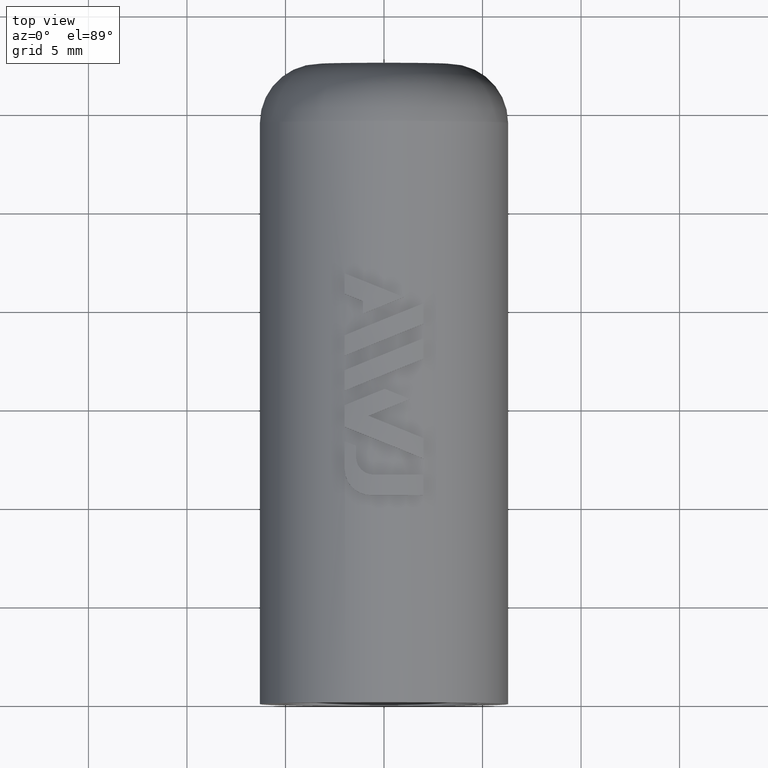
[diagram: clean part render]
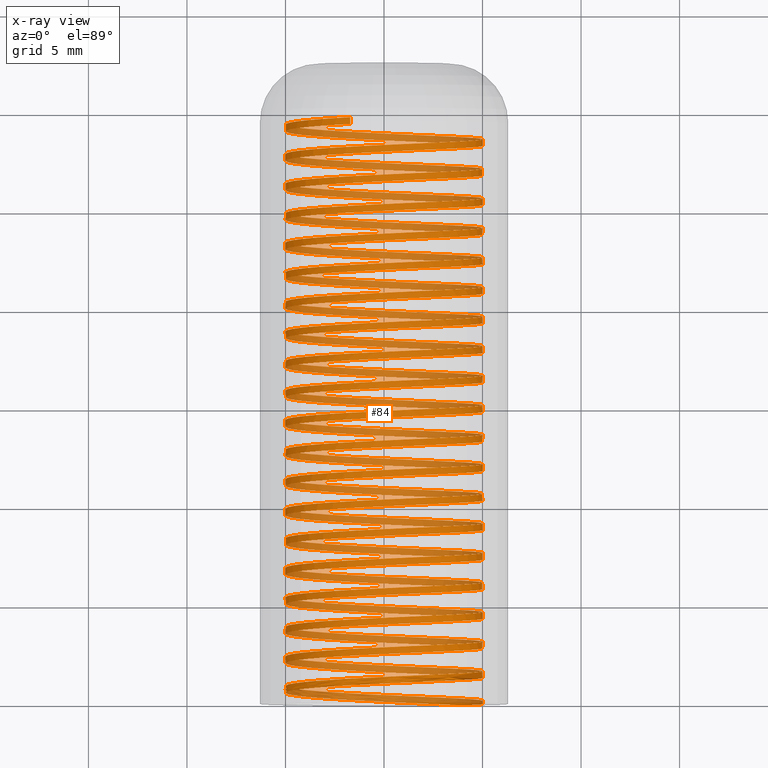
[diagram: x-ray — body ghosted, one internal face saturated and labeled with its STEP entity id]
A machine part, top view, then the same camera in x-ray: the body is ghosted and one INTERNAL B-rep face — a face not visible from any outside direction — is saturated and labeled: STEP entity #84.
In plain terms, the highlighted face is a freeform B-spline surface patch.
Its self-contained STEP definition (entity closure, byte-faithful):
#84=ADVANCED_FACE('',(#169),#170,.F.);
#169=FACE_OUTER_BOUND('',#341,.T.);
#170=B_SPLINE_SURFACE_WITH_KNOTS('',1,3,((#342,#343,#344,#345,#346,#347,#348,#349,#350,#351,#352,#353,#354,#355,#356,#357,#358,#359,#360,#361,#362,#363,#364,#365,#366,#367,#368,#369,#370,#371,#372,#373,#374,#375,#376,#377,#378,#379,#380,#381,#382,#383,#384,#385,#386,#387,#388,#389,#390,#391,#392,#393,#394,#395,#396,#397,#398,#399,#400,#401,#402,#403,#404,#405,#406,#407,#408,#409,#410,#411,#412,#413,#414,#415,#416,#417,#418,#419,#420,#421,#422,#423,#424,#425,#426,#427,#428,#429,#430,#431,#432,#433,#434,#435,#436,#437,#438,#439,#440,#441,#442,#443,#444,#445,#446,#447,#448,#449,#450,#451,#452,#453,#454,#455,#456,#457,#458,#459,#460,#461,#462,#463,#464,#465,#466,#467,#468,#469,#470,#471,#472,#473,#474,#475,#476,#477,#478,#479,#480,#481,#482,#483,#484,#485,#486,#487,#488,#489,#490,#491,#492,#493,#494,#495,#496,#497,#498,#499,#500,#501,#502,#503,#504,#505,#506,#507,#508,#509,#510,#511,#512,#513,#514,#515,#516,#517,#518,#519,#520,#521,#522,#523,#524,#525,#526,#527,#528,#529,#530,#531,#532,#533,#534,#535,#536,#537,#538,#539,#540,#541,#542,#543,#544,#545,#546,#547,#548,#549,#550,#551,#552,#553,#554,#555,#556,#557,#558,#559,#560,#561,#562,#563,#564,#565,#566,#567,#568,#569,#570,#571,#572,#573,#574,#575,#576,#577,#578,#579,#580,#581,#582,#583,#584,#585,#586,#587,#588,#589,#590,#591,#592,#593,#594,#595,#596,#597,#598,#599,#600,#601,#602,#603,#604,#605,#606,#607,#608,#609,#610,#611,#612,#613,#614,#615,#616,#617,#618,#619,#620,#621,#622,#623,#624,#625,#626,#627,#628,#629,#630,#631,#632,#633,#634,#635,#636,#637,#638,#639,#640,#641,#642,#643,#644,#645,#646,#647,#648,#649,#650,#651,#652,#653,#654,#655,#656,#657,#658),(#659,#660,#661,#662,#663,#664,#665,#666,#667,#668,#669,#670,#671,#672,#673,#674,#675,#676,#677,#678,#679,#680,#681,#682,#683,#684,#685,#686,#687,#688,#689,#690,#691,#692,#693,#694,#695,#696,#697,#698,#699,#700,#701,#702,#703,#704,#705,#706,#707,#708,#709,#710,#711,#712,#713,#714,#715,#716,#717,#718,#719,#720,#721,#722,#723,#724,#725,#726,#727,#728,#729,#730,#731,#732,#733,#734,#735,#736,#737,#738,#739,#740,#741,#742,#743,#744,#745,#746,#747,#748,#749,#750,#751,#752,#753,#754,#755,#756,#757,#758,#759,#760,#761,#762,#763,#764,#765,#766,#767,#768,#769,#770,#771,#772,#773,#774,#775,#776,#777,#778,#779,#780,#781,#782,#783,#784,#785,#786,#787,#788,#789,#790,#791,#792,#793,#794,#795,#796,#797,#798,#799,#800,#801,#802,#803,#804,#805,#806,#807,#808,#809,#810,#811,#812,#813,#814,#815,#816,#817,#818,#819,#820,#821,#822,#823,#824,#825,#826,#827,#828,#829,#830,#831,#832,#833,#834,#835,#836,#837,#838,#839,#840,#841,#842,#843,#844,#845,#846,#847,#848,#849,#850,#851,#852,#853,#854,#855,#856,#857,#858,#859,#860,#861,#862,#863,#864,#865,#866,#867,#868,#869,#870,#871,#872,#873,#874,#875,#876,#877,#878,#879,#880,#881,#882,#883,#884,#885,#886,#887,#888,#889,#890,#891,#892,#893,#894,#895,#896,#897,#898,#899,#900,#901,#902,#903,#904,#905,#906,#907,#908,#909,#910,#911,#912,#913,#914,#915,#916,#917,#918,#919,#920,#921,#922,#923,#924,#925,#926,#927,#928,#929,#930,#931,#932,#933,#934,#935,#936,#937,#938,#939,#940,#941,#942,#943,#944,#945,#946,#947,#948,#949,#950,#951,#952,#953,#954,#955,#956,#957,#958,#959,#960,#961,#962,#963,#964,#965,#966,#967,#968,#969,#970,#971,#972,#973,#974,#975)),.UNSPECIFIED.,.F.,.F.,.F.,(2,2),(4,1,1,1,1,1,1,1,1,1,1,1,1,1,1,1,1,1,1,1,1,1,1,1,1,1,1,1,1,1,1,1,1,1,1,1,1,1,1,1,1,1,1,1,1,1,1,1,1,1,1,1,1,1,1,1,1,1,1,1,1,1,1,1,1,1,1,1,1,1,1,1,1,1,1,1,1,1,1,1,1,1,1,1,1,1,1,1,1,1,1,1,1,1,1,1,1,1,1,1,1,1,1,1,1,1,1,1,1,1,1,1,1,1,1,1,1,1,1,1,1,1,1,1,1,1,1,1,1,1,1,1,1,1,1,1,1,1,1,1,1,1,1,1,1,1,1,1,1,1,1,1,1,1,1,1,1,1,1,1,1,1,1,1,1,1,1,1,1,1,1,1,1,1,1,1,1,1,1,1,1,1,1,1,1,1,1,1,1,1,1,1,1,1,1,1,1,1,1,1,1,1,1,1,1,1,1,1,1,1,1,1,1,1,1,1,1,1,1,1,1,1,1,1,1,1,1,1,1,1,1,1,1,1,1,1,1,1,1,1,1,1,1,1,1,1,1,1,1,1,1,1,1,1,1,1,1,1,1,1,1,1,1,1,1,1,1,1,1,1,1,1,1,1,1,1,1,1,1,1,1,1,1,1,1,1,1,1,1,1,1,1,1,1,1,1,1,1,1,1,1,1,1,1,1,1,1,1,1,1,1,1,1,1,4),(0.0,0.333333333333334),(0.0,1.0,2.0,3.0,4.0,5.0,6.0,7.0,8.0,9.0,10.0,11.0,12.0,13.0,14.0,15.0,16.0,17.0,18.0,19.0,20.0,21.0,22.0,23.0,24.0,25.0,26.0,27.0,28.0,29.0,30.0,31.0,32.0,33.0,34.0,35.0,36.0,37.0,38.0,39.0,40.0,41.0,42.0,43.0,44.0,45.0,46.0,47.0,48.0,49.0,50.0,51.0,52.0,53.0,54.0,55.0,56.0,57.0,58.0,59.0,60.0,61.0,62.0,63.0,64.0,65.0,66.0,67.0,68.0,69.0,70.0,71.0,72.0,73.0,74.0,75.0,76.0,77.0,78.0,79.0,80.0,81.0,82.0,83.0,84.0,85.0,86.0,87.0,88.0,89.0,90.0,91.0,92.0,93.0,94.0,95.0,96.0,97.0,98.0,99.0,100.0,101.0,102.0,103.0,104.0,105.0,106.0,107.0,108.0,109.0,110.0,111.0,112.0,113.0,114.0,115.0,116.0,117.0,118.0,119.0,120.0,121.0,122.0,123.0,124.0,125.0,126.0,127.0,128.0,129.0,130.0,131.0,132.0,133.0,134.0,135.0,136.0,137.0,138.0,139.0,140.0,141.0,142.0,143.0,144.0,145.0,146.0,147.0,148.0,149.0,150.0,151.0,152.0,153.0,154.0,155.0,156.0,157.0,158.0,159.0,160.0,161.0,162.0,163.0,164.0,165.0,166.0,167.0,168.0,169.0,170.0,171.0,172.0,173.0,174.0,175.0,176.0,177.0,178.0,179.0,180.0,181.0,182.0,183.0,184.0,185.0,186.0,187.0,188.0,189.0,190.0,191.0,192.0,193.0,194.0,195.0,196.0,197.0,198.0,199.0,200.0,201.0,202.0,203.0,204.0,205.0,206.0,207.0,208.0,209.0,210.0,211.0,212.0,213.0,214.0,215.0,216.0,217.0,218.0,219.0,220.0,221.0,222.0,223.0,224.0,225.0,226.0,227.0,228.0,229.0,230.0,231.0,232.0,233.0,234.0,235.0,236.0,237.0,238.0,239.0,240.0,241.0,242.0,243.0,244.0,245.0,246.0,247.0,248.0,249.0,250.0,251.0,252.0,253.0,254.0,255.0,256.0,257.0,258.0,259.0,260.0,261.0,262.0,263.0,264.0,265.0,266.0,267.0,268.0,269.0,270.0,271.0,272.0,273.0,274.0,275.0,276.0,277.0,278.0,279.0,280.0,281.0,282.0,283.0,284.0,285.0,286.0,287.0,288.0,289.0,290.0,291.0,292.0,293.0,294.0,295.0,296.0,297.0,298.0,299.0,300.0,301.0,302.0,303.0,304.0,305.0,306.0,307.0,308.0,309.0,310.0,311.0,312.0,313.0,314.0),.UNSPECIFIED.);
#341=EDGE_LOOP('',(#2417,#2418,#2419,#2420,#2421));
#342=CARTESIAN_POINT('',(5.0,-0.173205080756864,-1.82260150325267E-15));
#343=CARTESIAN_POINT('',(5.0,-0.142046581419453,-0.652583393045449));
#344=CARTESIAN_POINT('',(4.73778781981941,-0.0790295536328041,-1.97210082464296));
#345=CARTESIAN_POINT('',(3.61814288935587,0.0149332712702133,-3.63779221202605));
#346=CARTESIAN_POINT('',(1.94380699883004,0.109046875730565,-4.74880697576069));
#347=CARTESIAN_POINT('',(-0.0285206821310998,0.203120078900216,-5.13098860026959));
#348=CARTESIAN_POINT('',(-1.99647971893704,0.297204107579412,-4.72677516308801));
#349=CARTESIAN_POINT('',(-3.65836407377911,0.391285235566423,-3.59785935386459));
#350=CARTESIAN_POINT('',(-4.75939901715307,0.485367140793635,-1.91738455873977));
#351=CARTESIAN_POINT('',(-5.13078801693896,0.579448837759328,0.0570413555299523));
#352=CARTESIAN_POINT('',(-4.71559512833593,0.673530590528712,2.02272141371951));
#353=CARTESIAN_POINT('',(-3.57747193472565,0.767612328345493,3.67830587877885));
#354=CARTESIAN_POINT('',(-1.89089987610573,0.861694070168823,4.76998292685132));
#355=CARTESIAN_POINT('',(0.0855589850852769,0.9557758109186,5.13039171642049));
#356=CARTESIAN_POINT('',(2.04890111753762,1.04985755195603,4.7042792968921));
#357=CARTESIAN_POINT('',(3.6981338675503,1.14393929291639,3.55697137927292));
#358=CARTESIAN_POINT('',(4.78041951825449,1.2380210338974,1.86435745614031));
#359=CARTESIAN_POINT('',(5.12983689636061,1.33210277487288,-0.114074149456028));
#360=CARTESIAN_POINT('',(4.69281812789219,1.42618451584984,-2.07501747302747));
#361=CARTESIAN_POINT('',(3.53636092899473,1.5202662568264,-3.71784761316477));
#362=CARTESIAN_POINT('',(1.83775743615398,1.61434799780307,-4.79070841324114));
#363=CARTESIAN_POINT('',(-0.142585789474959,1.7084297387797,-5.12912358863358));
#364=CARTESIAN_POINT('',(-2.10106971994569,1.80251147975636,-4.6812119719967));
#365=CARTESIAN_POINT('',(-3.73744649425893,1.896593220733,-3.51564122136908));
#366=CARTESIAN_POINT('',(-4.800849297205,1.99067496170965,-1.81110063783438));
#367=CARTESIAN_POINT('',(-5.12825181439977,2.08475670268629,0.171093024239266));
#368=CARTESIAN_POINT('',(-4.66946118801881,2.17883844366294,2.12705705340119));
#369=CARTESIAN_POINT('',(-3.49481289647697,2.27292018463958,3.75692990531578));
#370=CARTESIAN_POINT('',(-1.78438788477192,2.36700192561622,4.81084185683931));
#371=CARTESIAN_POINT('',(0.199594973010067,2.46108366659287,5.12722160059295));
#372=CARTESIAN_POINT('',(2.15297867050275,2.55516540756951,4.65756613900415));
#373=CARTESIAN_POINT('',(3.7762972443872,2.64924714854616,3.47387659781857));
#374=CARTESIAN_POINT('',(4.82068578341949,2.74332888952281,1.75762000226871));
#375=CARTESIAN_POINT('',(5.12603297904206,2.83741063049945,-0.228090755207261));
#376=CARTESIAN_POINT('',(4.64552719245542,2.9314923714761,-2.17883377039074));
#377=CARTESIAN_POINT('',(3.45283297222992,3.02557411245274,-3.7955479131108));
#378=CARTESIAN_POINT('',(1.73079781733016,3.11965585342938,-4.83038077281315));
#379=CARTESIAN_POINT('',(-0.256579490441247,3.21373759440604,-5.12468598647007));
#380=CARTESIAN_POINT('',(-2.20462155426058,3.30781933538268,-4.63334472032111));
#381=CARTESIAN_POINT('',(-3.8146813167288,3.40190107635932,-3.431682669863));
#382=CARTESIAN_POINT('',(-4.83992652548938,3.49598281733597,-1.70392215863934));
#383=CARTESIAN_POINT('',(-5.12318066449291,3.59006455831261,0.285060298540144));
#384=CARTESIAN_POINT('',(-4.62101909898401,3.68414629928926,2.23034122538748));
#385=CARTESIAN_POINT('',(-3.41042634416562,3.77822804026591,3.83369686410637));
#386=CARTESIAN_POINT('',(-1.67699385653144,3.87230978124255,4.84932274652798));
#387=CARTESIAN_POINT('',(0.313532299577,3.9663915222192,5.12151705961816));
#388=CARTESIAN_POINT('',(2.25599198915097,4.06047326319584,4.60855070924955));
#389=CARTESIAN_POINT('',(3.85259396774987,4.15455500417249,3.38906465186122));
#390=CARTESIAN_POINT('',(4.85856914562862,4.24863674514913,1.65001374296803));
#391=CARTESIAN_POINT('',(5.1196952232436,4.34271848612578,-0.341994613896897));
#392=CARTESIAN_POINT('',(4.59593993633405,4.43680022710242,-2.28157305305959));
#393=CARTESIAN_POINT('',(3.36759825292858,4.53088196807907,-3.87137204382505));
#394=CARTESIAN_POINT('',(1.62298265151154,4.62496370905571,-4.86766543711977));
#395=CARTESIAN_POINT('',(-0.370446362144286,4.71904545003236,-5.11771521165568));
#396=CARTESIAN_POINT('',(-2.30708362677515,4.813127191009,-4.58318716985286));
#397=CARTESIAN_POINT('',(-3.89003051217512,4.90720893198565,-3.34602781058145));
#398=CARTESIAN_POINT('',(-4.87661133996754,5.0012906729623,-1.59590141729927));
#399=CARTESIAN_POINT('',(-5.1155770860277,5.09537241393894,0.39888666529));
#400=CARTESIAN_POINT('',(-4.57029280380824,5.18945415491558,2.33252292213741));
#401=CARTESIAN_POINT('',(-3.32435399124803,5.28353589589223,3.90856879633852));
#402=CARTESIAN_POINT('',(-1.56877087701777,5.37761763686888,4.88540657778437));
#403=CARTESIAN_POINT('',(0.427314644658489,5.47169937784552,5.113280912418));
#404=CARTESIAN_POINT('',(2.35789015318827,5.56578111882217,4.55725723657724));
#405=CARTESIAN_POINT('',(3.92698632356692,5.65986285979881,3.30257746455041));
#406=CARTESIAN_POINT('',(4.89405087883755,5.75394460077546,1.54159186887686));
#407=CARTESIAN_POINT('',(5.11082676176785,5.8480263417521,-0.45572942195495));
#408=CARTESIAN_POINT('',(4.5440808708994,5.94210808272875,-2.38318453619606));
#409=CARTESIAN_POINT('',(3.28069890328386,6.03618982370539,-3.94528252484279));
#410=CARTESIAN_POINT('',(1.51436523258387,6.13027156468204,-4.90254397605764));
#411=CARTESIAN_POINT('',(-0.484130119292466,6.22435330565868,-5.10821470989931));
#412=CARTESIAN_POINT('',(-2.40840528967981,6.31843504663533,-4.53076411386426));
#413=CARTESIAN_POINT('',(-3.96345683489702,6.41251678761197,-3.25871898339607));
#414=CARTESIAN_POINT('',(-4.91088560704671,6.50659852858862,-1.48709180931756));
#415=CARTESIAN_POINT('',(-5.10544483751286,6.60068026956526,0.512515859219156));
#416=CARTESIAN_POINT('',(-4.51730737689884,6.69476201054191,2.43355163443335));
#417=CARTESIAN_POINT('',(-3.2366383839662,6.78884375151855,3.98150869222642));
#418=CARTESIAN_POINT('',(-1.45977244170223,6.8829254924952,4.91907551408642));
#419=CARTESIAN_POINT('',(0.540885764745163,6.97700723347185,5.10251723018491));
#420=CARTESIAN_POINT('',(2.45862279354942,7.07108897444849,4.50371107575487));
#421=CARTESIAN_POINT('',(3.99943753911093,7.16517071542513,3.21445778718404));
#422=CARTESIAN_POINT('',(4.92711344414604,7.25925245640178,1.43240797378163));
#423=CARTESIAN_POINT('',(5.09943197836516,7.35333419737843,-0.56923895936993));
#424=CARTESIAN_POINT('',(4.48997563049601,7.44741593835507,-2.48361799244365));
#425=CARTESIAN_POINT('',(3.19217787832878,7.54149767933172,-4.01724282163106));
#426=CARTESIAN_POINT('',(1.40499925099287,7.63557942030836,-4.93499914889023));
#427=CARTESIAN_POINT('',(-0.597574567109126,7.72966116128501,-5.09618917737383));
#428=CARTESIAN_POINT('',(-2.50853645887848,7.82374290226165,-4.47610146548481));
#429=CARTESIAN_POINT('',(-4.03492398968485,7.9178246432383,-3.16979934574786));
#430=CARTESIAN_POINT('',(-4.94273238468668,8.01190638421494,-1.37754712014047));
#431=CARTESIAN_POINT('',(-5.09278892739865,8.10598812519159,0.625891712521884));
#432=CARTESIAN_POINT('',(-4.46208900936966,8.20006986616823,2.53337742298703));
#433=CARTESIAN_POINT('',(-3.14732288083583,8.29415160714488,4.0524804970049));
#434=CARTESIAN_POINT('',(-1.35005242936993,8.38823334812152,4.95031291261373));
#435=CARTESIAN_POINT('',(0.654189520737678,8.48231508909817,5.08923133349182));
#436=CARTESIAN_POINT('',(2.55814011729693,8.57639683007481,4.44793869507145));
#437=CARTESIAN_POINT('',(4.06991180117528,8.67047857105146,3.12474917801285));
#438=CARTESIAN_POINT('',(4.95774049846765,8.76456031202811,1.32251602814167));
#439=CARTESIAN_POINT('',(5.08551650556675,8.85864205300475,-0.682467117483306));
#440=CARTESIAN_POINT('',(4.43365095977035,8.9527237939814,-2.58282377675389));
#441=CARTESIAN_POINT('',(3.10207893470329,9.04680553495804,-4.08721736364827));
#442=CARTESIAN_POINT('',(1.29493876720481,9.14088727593469,-4.96501491276995));
#443=CARTESIAN_POINT('',(-0.71072362911015,9.23496901691133,-5.08164455839469));
#444=CARTESIAN_POINT('',(-2.60742763874552,9.32905075788798,-4.41922624489218));
#445=CARTESIAN_POINT('',(-4.10439664976101,9.42313249886463,-3.07931285131414));
#446=CARTESIAN_POINT('',(-4.97213593077442,9.51721423984127,-1.26732149857085));
#447=CARTESIAN_POINT('',(-5.07761561160112,9.61129598081792,0.738958182620979));
#448=CARTESIAN_POINT('',(-4.40466499609474,9.70537772179456,2.63195094312482));
#449=CARTESIAN_POINT('',(-3.05645163121358,9.7994594627712,4.12144912875188));
#450=CARTESIAN_POINT('',(-1.2396650754873,9.89354120374785,4.97910333247412));
#451=CARTESIAN_POINT('',(0.767169905696961,9.9876229447245,5.07342978966209));
#452=CARTESIAN_POINT('',(2.65639293223362,10.0817046857011,4.38996766325415));
#453=CARTESIAN_POINT('',(4.13837427377719,10.1757864266778,3.03349598070889));
#454=CARTESIAN_POINT('',(4.98591690260814,10.2698681676544,1.21197035241142));
#455=CARTESIAN_POINT('',(5.06908722190043,10.3639499086311,-0.795357926724633));
#456=CARTESIAN_POINT('',(4.37513470045094,10.4580316496077,-2.680752850926));
#457=CARTESIAN_POINT('',(3.01044660902489,10.5521133905844,-4.15517156192718));
#458=CARTESIAN_POINT('',(1.18423818498372,10.646195131561,-4.99257643066827));
#459=CARTESIAN_POINT('',(-0.823521374822807,10.7402768725376,-5.06458804248162));
#460=CARTESIAN_POINT('',(-2.70502994659169,10.8343586135143,-4.36016656595594));
#461=CARTESIAN_POINT('',(-4.17184047424234,10.9284403544909,-2.98730422828196));
#462=CARTESIAN_POINT('',(-4.99908171090547,11.0225220954676,-1.15646943000161));
#463=CARTESIAN_POINT('',(-5.0599323904098,11.1166038364442,0.851659379869491));
#464=CARTESIAN_POINT('',(-4.34506372221619,11.2106855774209,2.72922346917923));
#465=CARTESIAN_POINT('',(-2.96406955347403,11.3047673183975,4.18838049572936));
#466=CARTESIAN_POINT('',(-1.12866494539286,11.3988490593742,5.00543254233629));
#467=CARTESIAN_POINT('',(0.879771072528765,11.4929308003508,5.05512040952334));
#468=CARTESIAN_POINT('',(2.7533326712192,11.5870125413275,4.32982663584061));
#469=CARTESIAN_POINT('',(4.20479111537706,11.6810942823041,2.94074330244649));
#470=CARTESIAN_POINT('',(5.01162872874903,11.7751760232807,1.10082559018912));
#471=CARTESIAN_POINT('',(5.05015224849051,11.8692577642574,-0.907855584277646));
#472=CARTESIAN_POINT('',(4.31445577758563,11.963339505234,-2.77735680784732));
#473=CARTESIAN_POINT('',(2.91732619587405,12.0574212462107,-4.22107182617222));
#474=CARTESIAN_POINT('',(1.07295222449941,12.1515029871873,-5.0176700787098));
#475=CARTESIAN_POINT('',(-0.935912047432911,12.245584728164,-5.0450280608048));
#476=CARTESIAN_POINT('',(-2.80129513682741,12.3396664691406,-4.29895162234061));
#477=CARTESIAN_POINT('',(-4.23722212511518,12.4337482101173,-2.89381895723837));
#478=CARTESIAN_POINT('',(-5.02355640556847,12.5278299510939,-1.04504570948348));
#479=CARTESIAN_POINT('',(-5.03974800478021,12.6219116920706,0.963939595177912));
#480=CARTESIAN_POINT('',(-4.28331464911316,12.7159934330472,2.82514691857439));
#481=CARTESIAN_POINT('',(-2.87022231280588,12.8100751740239,4.25324151323542));
#482=CARTESIAN_POINT('',(-1.01710690732522,12.9041569150005,5.02928752746442));
#483=CARTESIAN_POINT('',(0.991937361589342,12.9982386559771,5.03431224354638));
#484=CARTESIAN_POINT('',(2.84891141617707,13.0923203969538,4.26754534101441));
#485=CARTESIAN_POINT('',(4.26912949560697,13.1864021379304,2.84653699160515));
#486=CARTESIAN_POINT('',(5.03486326733211,13.2804838789071,0.989136681206206));
#487=CARTESIAN_POINT('',(5.02872094504352,13.3745656198837,-1.01990448166405));
#488=CARTESIAN_POINT('',(4.25164418524398,13.4686473608604,-2.87258789542095));
#489=CARTESIAN_POINT('',(2.82276372540447,13.562729101837,-4.2848855813637));
#490=CARTESIAN_POINT('',(0.961135895278689,13.6568108428137,-5.04028345290666));
#491=CARTESIAN_POINT('',(-1.04784009134566,13.7508925837903,-5.02297428201723));
#492=CARTESIAN_POINT('',(-2.89617562481088,13.844974324767,-4.235611673075));
#493=CARTESIAN_POINT('',(-4.30050928371447,13.9390560657436,-2.7989032486893));
#494=CARTESIAN_POINT('',(-5.04554791672906,14.0331378067202,-0.933105414639147));
#495=CARTESIAN_POINT('',(-5.01707243201317,14.1272195476969,1.07574332755135));
#496=CARTESIAN_POINT('',(-4.21944829983892,14.2213012886735,2.9196738755937));
#497=CARTESIAN_POINT('',(-2.77495629863943,14.3153830296502,4.3160001199582));
#498=CARTESIAN_POINT('',(-0.905046105301486,14.4094647706268,5.05065649615141));
#499=CARTESIAN_POINT('',(1.10361332819849,14.5035465116035,5.01101557737156));
#500=CARTESIAN_POINT('',(2.94308192178071,14.5976282525801,4.20315456491019));
#501=CARTESIAN_POINT('',(4.33135761149877,14.6917099935568,2.75092361510632));
#502=CARTESIAN_POINT('',(5.05560903334193,14.7857917345334,0.876958834170283));
#503=CARTESIAN_POINT('',(5.00480390522157,14.87987347551,-1.13144923223127));
#504=CARTESIAN_POINT('',(4.18673097169086,14.9739552164867,-2.96639904017015));
#505=CARTESIAN_POINT('',(2.72680594059016,15.0680369574634,-4.34658128385977));
#506=CARTESIAN_POINT('',(0.848844469014089,15.16211869844,-5.06040537528981));
#507=CARTESIAN_POINT('',(-1.15925017964739,15.2562004394167,-4.9984376074755));
#508=CARTESIAN_POINT('',(-2.98962451036946,15.3502821803933,-4.17017802759496));
#509=CARTESIAN_POINT('',(-4.36167066669918,15.4443639213699,-2.70260402021714));
#510=CARTESIAN_POINT('',(-5.06504537381002,15.5384456623466,-0.820703878438216));
#511=CARTESIAN_POINT('',(-4.99191688082293,15.6325274033232,1.18701531152423));
#512=CARTESIAN_POINT('',(-4.15349624403293,15.7266091442998,3.01275761481773));
#513=CARTESIAN_POINT('',(-2.67831860171588,15.8206908852765,4.37662529382404));
#514=CARTESIAN_POINT('',(-0.792537931858816,15.9147726262531,5.06952888554773));
#515=CARTESIAN_POINT('',(1.2147437700463,16.0088543672298,4.98524192672448));
#516=CARTESIAN_POINT('',(3.03579763880741,16.1029361082064,4.13668613639578));
#517=CARTESIAN_POINT('',(4.39144470320455,16.1970178491831,2.65395043539524));
#518=CARTESIAN_POINT('',(5.07385577198294,16.2910995901597,0.764347499474703));
#519=CARTESIAN_POINT('',(4.97841295140584,16.3851813311364,-1.24243469853043));
#520=CARTESIAN_POINT('',(4.11974822403903,16.479263072113,-3.05874387050718));
#521=CARTESIAN_POINT('',(2.62950027412007,16.5733448130897,-4.40612843698867));
#522=CARTESIAN_POINT('',(0.736133452241932,16.6674265540663,-5.07802589943457));
#523=CARTESIAN_POINT('',(-1.2700872414537,16.761508295043,-4.97143016585111));
#524=CARTESIAN_POINT('',(-3.08159560098295,16.8555900360196,-4.10268303026695));
#525=CARTESIAN_POINT('',(-4.42067604151603,16.9496717769963,-2.60496887328892));
#526=CARTESIAN_POINT('',(-5.08203913906476,17.0437535179729,-0.70789666184537));
#527=CARTESIAN_POINT('',(-4.96429378579653,17.1378352589496,1.29770054447855));
#528=CARTESIAN_POINT('',(-4.08549108231591,17.2319169999262,3.10435212422095));
#529=CARTESIAN_POINT('',(-2.58035699080991,17.3259987409029,4.43508706733209));
#530=CARTESIAN_POINT('',(-0.679638000673127,17.4200804818795,5.0858953668827));
#531=CARTESIAN_POINT('',(1.32527375448007,17.5141622228562,4.95700403172362));
#532=CARTESIAN_POINT('',(3.12701273714821,17.6082439638328,4.06817291133879));
#533=CARTESIAN_POINT('',(4.44936106920188,17.7023257048095,2.55566538707803));
#534=CARTESIAN_POINT('',(5.08959446374855,17.7964074457861,0.651358341788866));
#535=CARTESIAN_POINT('',(4.94956112885257,17.8904891867627,-1.35280601957174));
#536=CARTESIAN_POINT('',(4.05072905238808,17.9845709277394,-3.1495767396552));
#537=CARTESIAN_POINT('',(2.53089482495115,18.078652668716,-4.46349760612385));
#538=CARTESIAN_POINT('',(0.623058558905118,18.1727344096927,-5.0931363153771));
#539=CARTESIAN_POINT('',(-1.38029648913246,18.2668161506693,-4.94196530713506));
#540=CARTESIAN_POINT('',(-3.17204343461733,18.3608978916459,-4.0331600443993));
#541=CARTESIAN_POINT('',(-4.47749624134363,18.4549796326226,-2.50604606972649));
#542=CARTESIAN_POINT('',(-5.0965208123413,18.5490613735993,-0.594739526355774));
#543=CARTESIAN_POINT('',(-4.93421680124733,18.6431431145759,1.40774431383205));
#544=CARTESIAN_POINT('',(-4.01546643017465,18.7372248555526,3.19441212791624));
#545=CARTESIAN_POINT('',(-2.48111988911721,18.8313065965292,4.49135654236723));
#546=CARTESIAN_POINT('',(-0.566402119069775,18.9253883375059,5.09974785007565));
#547=CARTESIAN_POINT('',(1.43514864565804,19.0194700784825,4.92631585058285));
#548=CARTESIAN_POINT('',(3.2166821284614,19.1135518194592,3.99764875636604));
#549=CARTESIAN_POINT('',(4.50507808097463,19.2076335604358,2.45611705322848));
#550=CARTESIAN_POINT('',(5.10281732887938,19.3017153014125,0.538047212543753));
#551=CARTESIAN_POINT('',(4.91826269924494,19.3957970423891,-1.4625086379416));
#552=CARTESIAN_POINT('',(3.97970757345831,19.4898787833657,-3.23885274821139));
#553=CARTESIAN_POINT('',(2.43103833453395,19.5839605243423,-4.51866043323287));
#554=CARTESIAN_POINT('',(0.50967568281468,19.678042265319,-5.10572915391967));
#555=CARTESIAN_POINT('',(-1.48982344538398,19.7721240062957,-4.91005759603919));
#556=CARTESIAN_POINT('',(-3.26092330219537,19.8662057472723,-3.96164343575202));
#557=CARTESIAN_POINT('',(-4.53210317950934,19.960287488249,-2.40588450785136));
#558=CARTESIAN_POINT('',(-5.10848323523438,20.0543692292256,-0.481288406433465));
#559=CARTESIAN_POINT('',(-4.90170079446584,20.1484509702023,1.51709222408225));
#560=CARTESIAN_POINT('',(-3.94345690134663,20.2425327111789,3.28289310853392));
#561=CARTESIAN_POINT('',(-2.38065635031923,20.3366144521555,4.54540590448451));
#562=CARTESIAN_POINT('',(-0.452886260437349,20.4306961931322,5.11107948773495));
#563=CARTESIAN_POINT('',(1.54431413155562,20.5247779341089,4.89319255271193));
#564=CARTESIAN_POINT('',(3.30476148846029,20.6188596750855,3.92514853212305));
#565=CARTESIAN_POINT('',(4.5585681971649,20.7129414160622,2.35535464137242));
#566=CARTESIAN_POINT('',(5.11351783120904,20.8070231570388,0.424470122323094));
#567=CARTESIAN_POINT('',(4.88453313364332,20.9011048980155,-1.57148832677133));
#568=CARTESIAN_POINT('',(3.90671889372632,20.9951866389921,-3.32652776634131));
#569=CARTESIAN_POINT('',(2.32998016271841,21.0892683799688,-4.57158965089569));
#570=CARTESIAN_POINT('',(0.396040870019448,21.1833501209454,-5.11579819032301));
#571=CARTESIAN_POINT('',(-1.59861397017091,21.277431861922,-4.87572280479647));
#572=CARTESIAN_POINT('',(-3.34819126969845,21.3715136028986,-3.8881685555481));
#573=CARTESIAN_POINT('',(-4.58446986337349,21.4655953438753,-2.30453369831256));
#574=CARTESIAN_POINT('',(-5.11792049462412,21.5596770848519,-0.367599381860687));
#575=CARTESIAN_POINT('',(-4.86676183837035,21.6537588258286,1.62569022369576));
#576=CARTESIAN_POINT('',(-3.86949809070919,21.7478405668052,3.3697513292283));
#577=CARTESIAN_POINT('',(-2.27901603433455,21.8419223077819,4.59720843665848));
#578=CARTESIAN_POINT('',(-0.339146536558946,21.9360040487585,5.11988467854287));
#579=CARTESIAN_POINT('',(1.6527162508132,22.0300857897352,4.85765051121793));
#580=CARTESIAN_POINT('',(3.39120727882341,22.1241675307119,3.85070807604174));
#581=CARTESIAN_POINT('',(4.6098049771869,22.2182492716885,2.2534279591637));
#582=CARTESIAN_POINT('',(5.12169068139492,22.3123310126652,0.310683213177366));
#583=CARTESIAN_POINT('',(4.84838910483766,22.4064127536418,-1.67969121654233));
#584=CARTESIAN_POINT('',(3.83179909207146,22.5004944946185,-3.41255845559284));
#585=CARTESIAN_POINT('',(2.22777026335489,22.5945762355951,-4.6222590957831));
#586=CARTESIAN_POINT('',(0.282210291102502,22.6886579765717,-5.12333844738309));
#587=CARTESIAN_POINT('',(-1.70661428747992,22.7827397175483,-4.83897790536466));
#588=CARTESIAN_POINT('',(-3.4338041998828,22.8768214585251,-3.81277172299958));
#589=CARTESIAN_POINT('',(-4.63457040767174,22.9709031995016,-2.20204373961358));
#590=CARTESIAN_POINT('',(-5.12482792559887,23.0649849404783,-0.253728650017829));
#591=CARTESIAN_POINT('',(-4.82941720356207,23.159066681455,1.73348463182594));
#592=CARTESIAN_POINT('',(-3.79362655668498,23.2531484224316,3.45494385529668));
#593=CARTESIAN_POINT('',(-2.17624918277202,23.3472301634083,4.64673853248943));
#594=CARTESIAN_POINT('',(-0.225239169876023,23.4413119043849,5.12615907002421));
#595=CARTESIAN_POINT('',(1.76030141940937,23.5353936453616,4.81970729481192));
#596=CARTESIAN_POINT('',(3.47597676871566,23.6294753863382,3.77436418462593));
#597=CARTESIAN_POINT('',(4.65876309429667,23.7235571273148,2.15038738976424));
#598=CARTESIAN_POINT('',(5.1273318395328,23.8176388682915,0.196742730872075));
#599=CARTESIAN_POINT('',(4.80984847910612,23.9117206092681,-1.78706382171385));
#600=CARTESIAN_POINT('',(3.75498520194183,24.0058023502448,-3.49690229031864));
#601=CARTESIAN_POINT('',(2.12445915960177,24.0998840912214,-4.67064372158936));
#602=CARTESIAN_POINT('',(0.168240213415661,24.1939658321981,-5.12834619789146));
#603=CARTESIAN_POINT('',(-1.81377101190341,24.2880475731748,-4.799841061037));
#604=CARTESIAN_POINT('',(-3.51771977360264,24.3821293141514,-3.7354902073547));
#605=CARTESIAN_POINT('',(-4.68238004731039,24.476211055128,-2.09846529334833));
#606=CARTESIAN_POINT('',(-5.1292021137611,24.5702927961047,-0.139732498104616));
#607=CARTESIAN_POINT('',(-4.78968534978814,24.6643745370813,1.84042216484773));
#608=CARTESIAN_POINT('',(-3.71587980317095,24.758456278058,3.53842857540238));
#609=CARTESIAN_POINT('',(-2.07240659409586,24.8525380190346,4.69397170886084));
#610=CARTESIAN_POINT('',(-0.111220465697195,24.9466197600112,5.12989956069785));
#611=CARTESIAN_POINT('',(1.86701645714781,25.0407015009879,4.77938165912465));
#612=CARTESIAN_POINT('',(3.55902805591042,25.1347832419645,3.69615459526254));
#613=CARTESIAN_POINT('',(4.70541834811128,25.2288649829412,2.04628386693916));
#614=CARTESIAN_POINT('',(5.13043851715377,25.3229467239179,0.082704997085148));
#615=CARTESIAN_POINT('',(4.76893030738358,25.4170284648945,-1.89355306716138));
#616=CARTESIAN_POINT('',(3.6763151930484,25.5111102058712,-3.57951757869679));
#617=CARTESIAN_POINT('',(2.02009791895144,25.6051919468478,-4.71671961141279));
#618=CARTESIAN_POINT('',(0.0541869732660776,25.6992736878244,-5.13081896647759));
#619=CARTESIAN_POINT('',(-1.92003117502841,25.7933554288011,-4.75833161746393));
#620=CARTESIAN_POINT('',(-3.59989651072887,25.8874371697778,-3.65636220947542));
#621=CARTESIAN_POINT('',(-4.72787514960796,25.9815189107544,-1.99384955915873));
#622=CARTESIAN_POINT('',(-5.13104089691514,26.075600651731,-0.0256672753169002));
#623=CARTESIAN_POINT('',(-4.74758591681687,26.1696823927077,1.94644996269619));
#624=CARTESIAN_POINT('',(-3.63629626099976,26.2637641336843,3.62016422239062));
#625=CARTESIAN_POINT('',(-1.96753959851563,26.357845874661,4.73888461804156));
#626=CARTESIAN_POINT('',(0.00285321563392567,26.4519276156376,5.13110430160979));
#627=CARTESIAN_POINT('',(1.97280861394476,26.5460093566143,4.73669353743551));
#628=CARTESIAN_POINT('',(3.64032008750226,26.6400910975909,3.61611796756761));
#629=CARTESIAN_POINT('',(4.74974767657121,26.7341728385675,1.94116884987993));
#630=CARTESIAN_POINT('',(5.13100917860262,26.8282545795442,-0.0313736184333475));
#631=CARTESIAN_POINT('',(4.72565481584465,26.9223363205208,-1.99910631441206));
#632=CARTESIAN_POINT('',(3.59582795259625,27.0164180614975,-3.66036348333951));
#633=CARTESIAN_POINT('',(1.91473812798719,27.1104998024741,-4.76046398957812));
#634=CARTESIAN_POINT('',(-0.0598930519312281,27.2045815434508,-5.1307555308325));
#635=CARTESIAN_POINT('',(-2.02534225161928,27.2986632844275,-4.71447009309038));
#636=CARTESIAN_POINT('',(-3.68029379065303,27.3927450254041,-3.57542684295437));
#637=CARTESIAN_POINT('',(-4.771033225977,27.4868267663808,-1.88824824942621));
#638=CARTESIAN_POINT('',(-5.13034336613609,27.5809085073574,0.0884106350071537));
#639=CARTESIAN_POINT('',(-4.70313971472923,27.674990248334,2.05151561499581));
#640=CARTESIAN_POINT('',(-3.55491526894461,27.7690719893106,3.70011039368674));
#641=CARTESIAN_POINT('',(-1.86170003260807,27.8631537302876,4.7814550592287));
#642=CARTESIAN_POINT('',(0.116925486578533,27.9572354712631,5.12977269723998));
#643=CARTESIAN_POINT('',(2.07762559597682,28.051317212244,4.69166403084583));
#644=CARTESIAN_POINT('',(3.71981267992615,28.1453989532045,3.53429386417803));
#645=CARTESIAN_POINT('',(4.79172916836598,28.2394806942418,1.83509429813038));
#646=CARTESIAN_POINT('',(5.12904353795229,28.3335624349916,-0.145436727038683));
#647=CARTESIAN_POINT('',(4.68004341025211,28.427644176815,-2.10367138299488));
#648=CARTESIAN_POINT('',(3.51356321294106,28.5217259146319,-3.73940005790926));
#649=CARTESIAN_POINT('',(1.80843206187761,28.6158076674009,-4.80185517479915));
#650=CARTESIAN_POINT('',(-0.173944182675501,28.7098893643677,-5.12815613235199));
#651=CARTESIAN_POINT('',(-2.12964959629278,28.8039712695917,-4.66827738490446));
#652=CARTESIAN_POINT('',(-3.75888133595802,28.898052397587,-3.49272712440296));
#653=CARTESIAN_POINT('',(-4.81179809215118,28.9921364262471,-1.7817018634931));
#654=CARTESIAN_POINT('',(-5.12723923213693,29.0862096294577,0.202399501219429));
#655=CARTESIAN_POINT('',(-4.65588594731935,29.180323233857,2.1557407130119));
#656=CARTESIAN_POINT('',(-3.47358173588093,29.2742860588548,3.77757236667719));
#657=CARTESIAN_POINT('',(-2.32332605550742,29.3373030865726,4.47526733367975));
#658=CARTESIAN_POINT('',(-1.71010071662424,29.36846158591,4.69846310393104));
#659=CARTESIAN_POINT('',(5.0,0.173205080756865,-2.35962039181189E-15));
#660=CARTESIAN_POINT('',(5.0,0.204363580094277,-0.652580775158487));
#661=CARTESIAN_POINT('',(4.73779180060875,0.267380607812062,-1.97209328263411));
#662=CARTESIAN_POINT('',(3.61814041935211,0.361343432809899,-3.63779492028259));
#663=CARTESIAN_POINT('',(1.94381241478304,0.455457037209222,-4.74880416502861));
#664=CARTESIAN_POINT('',(-0.0285202204375662,0.54953024041976,-5.13098908662167));
#665=CARTESIAN_POINT('',(-1.99647677195565,0.643614269079878,-4.72677608549372));
#666=CARTESIAN_POINT('',(-3.65836275022192,0.737695397075168,-3.59786091076198));
#667=CARTESIAN_POINT('',(-4.75939806152139,0.831777302299183,-1.91738676026834));
#668=CARTESIAN_POINT('',(-5.13078806683945,0.925858999266024,0.0570390686292819));
#669=CARTESIAN_POINT('',(-4.715596034256,1.01994075203502,2.02271928011118));
#670=CARTESIAN_POINT('',(-3.57747359310064,1.11402248985193,3.67830426965244));
#671=CARTESIAN_POINT('',(-1.89090202515979,1.20810423167522,4.76998207407831));
#672=CARTESIAN_POINT('',(0.0855566734610437,1.30218597242501,5.13039175518071));
#673=CARTESIAN_POINT('',(2.04889899792773,1.39626771346244,4.70428022001204));
#674=CARTESIAN_POINT('',(3.69813226488216,1.4903494544228,3.55697304555825));
#675=CARTESIAN_POINT('',(4.78041867822885,1.58443119540381,1.8643596100541));
#676=CARTESIAN_POINT('',(5.12983694775858,1.67851293637929,-0.114071838099934));
#677=CARTESIAN_POINT('',(4.69281906283415,1.77259467735624,-2.07501535858038));
#678=CARTESIAN_POINT('',(3.5363626041482,1.8666764183328,-3.7178460197831));
#679=CARTESIAN_POINT('',(1.83775959470744,1.96075815930947,-4.79070758520071));
#680=CARTESIAN_POINT('',(-0.142583478441272,2.05483990028611,-5.12912365287806));
#681=CARTESIAN_POINT('',(-2.10106761072773,2.14892164126275,-4.68121291867704));
#682=CARTESIAN_POINT('',(-3.73744491021303,2.2430033822394,-3.51564290535324));
#683=CARTESIAN_POINT('',(-4.80084848117533,2.33708512321605,-1.81110280095703));
#684=CARTESIAN_POINT('',(-5.12825189148878,2.43116686419269,0.171090713598371));
#685=CARTESIAN_POINT('',(-4.66946214640829,2.52524860516934,2.12705494947779));
#686=CARTESIAN_POINT('',(-3.4948145892398,2.61933034614599,3.75692833065452));
#687=CARTESIAN_POINT('',(-1.78439005239693,2.71341208712263,4.81084105284562));
#688=CARTESIAN_POINT('',(0.199592662833354,2.80749382809928,5.12722169052411));
#689=CARTESIAN_POINT('',(2.1529765719389,2.90157556907592,4.65756710907315));
#690=CARTESIAN_POINT('',(3.77629567915922,2.99565731005257,3.47387829930774));
#691=CARTESIAN_POINT('',(4.82068499148663,3.08973905102921,1.75762217432912));
#692=CARTESIAN_POINT('',(5.12603308181259,3.18382079200585,-0.228088445566102));
#693=CARTESIAN_POINT('',(4.64552817417397,3.2779025329825,-2.17883167725129));
#694=CARTESIAN_POINT('',(3.45283468239289,3.37198427395915,-3.79554635736446));
#695=CARTESIAN_POINT('',(1.73079999375885,3.46606601493579,-4.83037999296559));
#696=CARTESIAN_POINT('',(-0.256577181407001,3.56014775591244,-5.1246861020768));
#697=CARTESIAN_POINT('',(-2.2046194666102,3.65422949688908,-4.63334571365889));
#698=CARTESIAN_POINT('',(-3.81467977051217,3.74831123786573,-3.43168438864693));
#699=CARTESIAN_POINT('',(-4.8399257577512,3.84239297884237,-1.70392433936907));
#700=CARTESIAN_POINT('',(-5.12318079293226,3.93647471981902,0.28505799018415));
#701=CARTESIAN_POINT('',(-4.62102010391032,4.03055646079566,2.23033914329065));
#702=CARTESIAN_POINT('',(-3.4104280715174,4.12463820177231,3.83369532746722));
#703=CARTESIAN_POINT('',(-1.67699604149484,4.21871994274895,4.84932199092291));
#704=CARTESIAN_POINT('',(0.313529991970574,4.3128016837256,5.12151720088616));
#705=CARTESIAN_POINT('',(2.25598991267204,4.40688342470225,4.60855172573335));
#706=CARTESIAN_POINT('',(3.85259244073567,4.50096516567889,3.38906638772749));
#707=CARTESIAN_POINT('',(4.85856840218,4.59504690665553,1.65001593209758));
#708=CARTESIAN_POINT('',(5.11969537733589,4.68912864763218,-0.341992307111335));
#709=CARTESIAN_POINT('',(4.59594096434394,4.78321038860883,-2.2815709822627));
#710=CARTESIAN_POINT('',(3.36759999725571,4.87729212958547,-3.87137052648299));
#711=CARTESIAN_POINT('',(1.62298484473962,4.97137387056212,-4.86766470585057));
#712=CARTESIAN_POINT('',(-0.370444056250857,5.06545561153876,-5.1177153785675));
#713=CARTESIAN_POINT('',(-2.30708156172429,5.15953735251541,-4.58318820935707));
#714=CARTESIAN_POINT('',(-3.89002900455205,5.25361909349205,-3.34602956331554));
#715=CARTESIAN_POINT('',(-4.87661062090036,5.3477008344687,-1.59590361455812));
#716=CARTESIAN_POINT('',(-5.11557726575389,5.44178257544534,0.398884360359945));
#717=CARTESIAN_POINT('',(-4.57029385477466,5.53586431642199,2.33252086289637));
#718=CARTESIAN_POINT('',(-3.32435575233493,5.62994605739863,3.90856729848106));
#719=CARTESIAN_POINT('',(-1.5687730782395,5.72402779837528,4.88540587094142));
#720=CARTESIAN_POINT('',(0.427312340763019,5.81810953935192,5.11328110495301));
#721=CARTESIAN_POINT('',(2.35788809982067,5.91219128032857,4.5572582989734));
#722=CARTESIAN_POINT('',(3.92698483552132,6.00627302130521,3.30257923393571));
#723=CARTESIAN_POINT('',(4.89405018424066,6.10035476228186,1.54159407399347));
#724=CARTESIAN_POINT('',(5.11082696710573,6.19443650325851,-0.455727119165247));
#725=CARTESIAN_POINT('',(4.54408194469247,6.28851824423515,-2.38318248876534));
#726=CARTESIAN_POINT('',(3.28070068091291,6.3825999852118,-3.94528104665503));
#727=CARTESIAN_POINT('',(1.51436744152722,6.47668172618844,-4.90254329372828));
#728=CARTESIAN_POINT('',(-0.484127817679675,6.57076346716508,-5.10821492803372));
#729=CARTESIAN_POINT('',(-2.40840324824924,6.66484520814173,-4.53076519902106));
#730=CARTESIAN_POINT('',(-3.96345536661277,6.75892694911838,-3.25872076921393));
#731=CARTESIAN_POINT('',(-4.91088493700596,6.85300869009502,-1.48709402201941));
#732=CARTESIAN_POINT('',(-5.10544506843706,6.94709043107167,0.512513558854385));
#733=CARTESIAN_POINT('',(-4.51730847338585,7.04117217204831,2.43354959906599));
#734=CARTESIAN_POINT('',(-3.2366401779177,7.13525391302496,3.98150723389104));
#735=CARTESIAN_POINT('',(-1.45977465809422,7.2293356540016,4.91907485635498));
#736=CARTESIAN_POINT('',(0.540883465699484,7.32341739497825,5.10251747389176));
#737=CARTESIAN_POINT('',(2.45862076430816,7.4174991359549,4.50371218353822));
#738=CARTESIAN_POINT('',(3.99943609076949,7.51158087693154,3.21445958921377));
#739=CARTESIAN_POINT('',(4.92711279874423,7.60566261790818,1.43241019379527));
#740=CARTESIAN_POINT('',(5.09943223484714,7.69974435888483,-0.569236661714373));
#741=CARTESIAN_POINT('',(4.48997674954146,7.79382609986148,-2.48361596939117));
#742=CARTESIAN_POINT('',(3.19217968838104,7.88790784083812,-4.01724138332829));
#743=CARTESIAN_POINT('',(1.40500147455959,7.98198958181476,-4.93499851583799));
#744=CARTESIAN_POINT('',(-0.597572270914677,8.07607132279141,-5.09618944662301));
#745=CARTESIAN_POINT('',(-2.5085344420773,8.17015306376806,-4.47610259575781));
#746=CARTESIAN_POINT('',(-4.03492256146519,8.26423480474471,-3.16980116376676));
#747=CARTESIAN_POINT('',(-4.94273176400358,8.35831654572135,-1.37754934719156));
#748=CARTESIAN_POINT('',(-5.0927892094067,8.452398286698,0.625889417859487));
#749=CARTESIAN_POINT('',(-4.46209015083528,8.54648002767464,2.53337541249945));
#750=CARTESIAN_POINT('',(-3.14732470676517,8.64056176865129,4.05247907891249));
#751=CARTESIAN_POINT('',(-1.35005465983658,8.73464350962793,4.95031230431893));
#752=CARTESIAN_POINT('',(0.654187227678225,8.82872525060458,5.08923162825004));
#753=CARTESIAN_POINT('',(2.55813811318507,8.92280699158122,4.44793984769441));
#754=CARTESIAN_POINT('',(4.06991039325391,9.01688873255787,3.12475101179623));
#755=CARTESIAN_POINT('',(4.95773990257995,9.11097047353451,1.32251826195498));
#756=CARTESIAN_POINT('',(5.08551681306604,9.20505221451115,-0.682464826097643));
#757=CARTESIAN_POINT('',(4.43365212351506,9.2991339554878,-2.58282177907966));
#758=CARTESIAN_POINT('',(3.10208077628405,9.39321569646445,-4.08721596594145));
#759=CARTESIAN_POINT('',(1.29494100429576,9.48729743744109,-4.96501432930776));
#760=CARTESIAN_POINT('',(-0.710721339469072,9.58137917841773,-5.08164487862554));
#761=CARTESIAN_POINT('',(-2.60742564757065,9.67546091939438,-4.41922741972267));
#762=CARTESIAN_POINT('',(-4.10439526231192,9.76954266037103,-3.0793147006354));
#763=CARTESIAN_POINT('',(-4.97213535975576,9.86362440134767,-1.26732373887033));
#764=CARTESIAN_POINT('',(-5.07761594455364,9.95770614232432,0.738955894795224));
#765=CARTESIAN_POINT('',(-4.40466618197471,10.051787883301,2.63194895851082));
#766=CARTESIAN_POINT('',(-3.05645348821818,10.1458696242776,4.1214477516034));
#767=CARTESIAN_POINT('',(-1.23966731892609,10.2399513652543,4.97910277391664));
#768=CARTESIAN_POINT('',(0.767167619757214,10.3340331062309,5.07343013532599));
#769=CARTESIAN_POINT('',(2.6563909542418,10.4281148472075,4.38996886014699));
#770=CARTESIAN_POINT('',(4.13837290697185,10.5221965881842,3.03349784533947));
#771=CARTESIAN_POINT('',(4.9859163565291,10.6162783291608,1.21197259892021));
#772=CARTESIAN_POINT('',(5.06908758026502,10.7103600701375,-0.795355642741516));
#773=CARTESIAN_POINT('',(4.37513590831964,10.8044418111141,-2.68075087961749));
#774=CARTESIAN_POINT('',(3.01044848122384,10.8985235520908,-4.15517020550722));
#775=CARTESIAN_POINT('',(1.18424043449311,10.9926052930674,-4.99257589708453));
#776=CARTESIAN_POINT('',(-0.823519092866888,11.0866870340441,-5.06458841353585));
#777=CARTESIAN_POINT('',(-2.70502798202737,11.1807687750207,-4.3601677847632));
#778=CARTESIAN_POINT('',(-4.17183912824965,11.2748505159973,-2.98730610799144));
#779=CARTESIAN_POINT('',(-4.99908118983353,11.368932256974,-1.15647168244209));
#780=CARTESIAN_POINT('',(-5.05993277414219,11.4630139979506,0.851657100011269));
#781=CARTESIAN_POINT('',(-4.34506495192433,11.5570957389273,2.72922151141981));
#782=CARTESIAN_POINT('',(-2.96407144063597,11.6511774799039,4.18837916020554));
#783=CARTESIAN_POINT('',(-1.12866720069484,11.7452592208806,5.00543203379224));
#784=CARTESIAN_POINT('',(0.879768794838679,11.8393409618572,5.05512080592205));
#785=CARTESIAN_POINT('',(2.75333072032517,11.9334227028339,4.32982787641166));
#786=CARTESIAN_POINT('',(4.20478979036337,12.0275044438105,2.94074519700259));
#787=CARTESIAN_POINT('',(5.01162823274857,12.1215861847872,1.10082784828292));
#788=CARTESIAN_POINT('',(5.05015265754328,12.2156679257638,-0.907853308826065));
#789=CARTESIAN_POINT('',(4.31445702898127,12.3097496667405,-2.77735486387895));
#790=CARTESIAN_POINT('',(2.91732809776575,12.4038314077171,-4.22107051170959));
#791=CARTESIAN_POINT('',(1.07295448531527,12.4979131486937,-5.01766959526827));
#792=CARTESIAN_POINT('',(-0.935909774290137,12.5919948896704,-5.04502848249899));
#793=CARTESIAN_POINT('',(-2.80129319984476,12.686076630647,-4.29895288452216));
#794=CARTESIAN_POINT('',(-4.23722082124423,12.7801583716237,-2.89382086640694));
#795=CARTESIAN_POINT('',(-5.0235559347008,12.8742401126003,-1.04504797295155));
#796=CARTESIAN_POINT('',(-5.0397484391028,12.968321853577,0.963937324414175));
#797=CARTESIAN_POINT('',(-4.28331592204164,13.0624035945536,2.8251449886373));
#798=CARTESIAN_POINT('',(-2.87022422919232,13.1564853355303,4.25324021999643));
#799=CARTESIAN_POINT('',(-1.01710917337557,13.2505670765069,5.02928706918516));
#800=CARTESIAN_POINT('',(0.991935093274797,13.3446488174835,5.03431269048395));
#801=CARTESIAN_POINT('',(2.84890949334517,13.4387305584602,4.26754662465047));
#802=CARTESIAN_POINT('',(4.26912821303989,13.5328122994368,2.84653891515024));
#803=CARTESIAN_POINT('',(5.03486282165542,13.6268940404135,0.989138949768826));
#804=CARTESIAN_POINT('',(5.02872140458226,13.7209757813901,-1.01990221586878));
#805=CARTESIAN_POINT('',(4.25164547954797,13.8150575223668,-2.87258597975364));
#806=CARTESIAN_POINT('',(2.82276565604881,13.9091392633434,-4.28488430950816));
#807=CARTESIAN_POINT('',(0.961138166283488,14.0032210043201,-5.04028301984631));
#808=CARTESIAN_POINT('',(-1.04783782813967,14.0973027452967,-5.02297475414294));
#809=CARTESIAN_POINT('',(-2.89617371636735,14.1913844862734,-4.23561297800694));
#810=CARTESIAN_POINT('',(-4.30050802260976,14.28546622725,-2.79890518637322));
#811=CARTESIAN_POINT('',(-5.04554749629843,14.3795479682266,-0.933107688015964));
#812=CARTESIAN_POINT('',(-5.01707291671127,14.4736297092033,1.07574106700456));
#813=CARTESIAN_POINT('',(-4.21944961535849,14.5677114501799,2.91967197443291));
#814=CARTESIAN_POINT('',(-2.77495824330307,14.6617931911566,4.31599886964329));
#815=CARTESIAN_POINT('',(-0.905048380980082,14.7558749321332,5.05065608836349));
#816=CARTESIAN_POINT('',(1.10361107038074,14.8499566731099,5.01101607462707));
#817=CARTESIAN_POINT('',(2.94308002796141,14.9440384140865,4.20315589097674));
#818=CARTESIAN_POINT('',(4.33135637201228,15.0381201550632,2.7509255666896));
#819=CARTESIAN_POINT('',(5.05560863820931,15.1322018960398,0.876961112080351));
#820=CARTESIAN_POINT('',(5.00480441501912,15.2262836370165,-1.13144697721231));
#821=CARTESIAN_POINT('',(4.18673230826343,15.3203653779931,-2.96639715375083));
#822=CARTESIAN_POINT('',(2.72680789903279,15.4144471189698,-4.34658005524));
#823=CARTESIAN_POINT('',(0.848846749085253,15.5085288599464,-5.06040499282471));
#824=CARTESIAN_POINT('',(-1.1592479274969,15.6026106009231,-4.99843812979936));
#825=CARTESIAN_POINT('',(-2.98962263140842,15.6966923418997,-4.17017937463225));
#826=CARTESIAN_POINT('',(-4.3616694489841,15.7907740828763,-2.70260598545861));
#827=CARTESIAN_POINT('',(-5.06504500402425,15.8848558238529,-0.82070616060003));
#828=CARTESIAN_POINT('',(-4.99191741565694,15.9789375648296,1.18701306231178));
#829=CARTESIAN_POINT('',(-4.15349760149333,16.0730193058063,3.01275574337301));
#830=CARTESIAN_POINT('',(-2.67832057369547,16.1671010467829,4.37662408705126));
#831=CARTESIAN_POINT('',(-0.792540216040772,16.2611827877596,5.06952852845271));
#832=CARTESIAN_POINT('',(1.21474152384138,16.3552645287362,4.98524247405213));
#833=CARTESIAN_POINT('',(3.03579577493683,16.4493462697128,4.13668750423734));
#834=CARTESIAN_POINT('',(4.39144350741135,16.5434280106895,2.65395241405203));
#835=CARTESIAN_POINT('',(5.07385542758971,16.6375097516662,0.764349785606233));
#836=CARTESIAN_POINT('',(4.97841351121022,16.7315914926428,-1.24243245540245));
#837=CARTESIAN_POINT('',(4.11974960221949,16.8256732336194,-3.05874201426832));
#838=CARTESIAN_POINT('',(2.62950225939292,16.919754974596,-4.40612725221199));
#839=CARTESIAN_POINT('',(0.7361357402524,17.0138367155727,-5.07802556775376));
#840=CARTESIAN_POINT('',(-1.27008500147196,17.1079184565493,-4.97143073811492));
#841=CARTESIAN_POINT('',(-3.08159375243318,17.202000197526,-4.10268441874373));
#842=CARTESIAN_POINT('',(-4.4206748677925,17.2960819385026,-2.60497086511649));
#843=CARTESIAN_POINT('',(-5.08203882010663,17.3901636794793,-0.70789895166409));
#844=CARTESIAN_POINT('',(-4.96429437050208,17.4842454204559,1.29769830771225));
#845=CARTESIAN_POINT('',(-4.08549248104612,17.5783271614326,3.10435028341737));
#846=CARTESIAN_POINT('',(-2.58035898913068,17.6724089024092,4.43508590469794));
#847=CARTESIAN_POINT('',(-0.679640292229354,17.7664906433859,5.0858950606571));
#848=CARTESIAN_POINT('',(1.32527152099832,17.8605723843625,4.95700462885286));
#849=CARTESIAN_POINT('',(3.12701090414768,17.9546541253392,4.06817432027923));
#850=CARTESIAN_POINT('',(4.44935991769305,18.0487358663159,2.55566739183025));
#851=CARTESIAN_POINT('',(5.08959417026494,18.1428176072925,0.651360635011803));
#852=CARTESIAN_POINT('',(4.94956173838705,18.2368993482692,-1.35280378944354));
#853=CARTESIAN_POINT('',(4.0507304714952,18.3309810892457,-3.14957491451437));
#854=CARTESIAN_POINT('',(2.53089683607289,18.4250628302224,-4.46349646577591));
#855=CARTESIAN_POINT('',(0.62306085372391,18.519144571199,-5.09313603464454));
#856=CARTESIAN_POINT('',(-1.38029426242672,18.6132263121757,-4.94196592905595));
#857=CARTESIAN_POINT('',(-3.17204161739259,18.7073080531523,-4.03316147362926));
#858=CARTESIAN_POINT('',(-4.47749511219182,18.801389794129,-2.50604808715561));
#859=CARTESIAN_POINT('',(-5.09652054436847,18.8954715351056,-0.594741822699527));
#860=CARTESIAN_POINT('',(-4.93421743553541,18.9895532760823,1.40774209061755));
#861=CARTESIAN_POINT('',(-4.01546786948329,19.0836350170589,3.19441031866372));
#862=CARTESIAN_POINT('',(-2.48112191279138,19.1777167580356,4.49135542444643));
#863=CARTESIAN_POINT('',(-0.56640441686754,19.2717984990122,5.09974759487083));
#864=CARTESIAN_POINT('',(1.43514642600348,19.3658802399889,4.92631649721852));
#865=CARTESIAN_POINT('',(3.216680327237,19.4599619809655,3.9976502057089));
#866=CARTESIAN_POINT('',(4.50507697431938,19.5540437219422,2.45611908308518));
#867=CARTESIAN_POINT('',(5.10281708645046,19.6481254629188,0.53804951172454));
#868=CARTESIAN_POINT('',(4.91826335820823,19.7422072038955,-1.46250642191555));
#869=CARTESIAN_POINT('',(3.9797090327906,19.8362889448721,-3.23885095507076));
#870=CARTESIAN_POINT('',(2.43104037051047,19.9303706858488,-4.51865933787736));
#871=CARTESIAN_POINT('',(0.50967798330745,20.0244524268254,-5.10572892427414));
#872=CARTESIAN_POINT('',(-1.48982123305491,20.118534167802,-4.91005826730974));
#873=CARTESIAN_POINT('',(-3.26092151719392,20.2126159087787,-3.96164490502867));
#874=CARTESIAN_POINT('',(-4.53210209548741,20.3066976497553,-2.40588654988479));
#875=CARTESIAN_POINT('',(-5.10848301837932,20.400779390732,-0.481290708167149));
#876=CARTESIAN_POINT('',(-4.90170147802291,20.4948611317086,1.5170900155185));
#877=CARTESIAN_POINT('',(-3.94345838052224,20.5889428726853,3.28289133172678));
#878=CARTESIAN_POINT('',(-2.38065839834647,20.6830246136619,4.54540483182965));
#879=CARTESIAN_POINT('',(-0.452888563340831,20.7771063546386,5.11107928367708));
#880=CARTESIAN_POINT('',(1.54431192682544,20.8711880956152,4.8931932485344));
#881=CARTESIAN_POINT('',(3.30475971990237,20.9652698365919,3.9251500211519));
#882=CARTESIAN_POINT('',(4.55856713591025,21.0593515775685,2.35535669533022));
#883=CARTESIAN_POINT('',(5.11351763995465,21.1534333185452,0.424472426325226));
#884=CARTESIAN_POINT('',(4.88453384170968,21.2475150595218,-1.57148612594283));
#885=CARTESIAN_POINT('',(3.90672039256243,21.3415968004985,-3.32652600608724));
#886=CARTESIAN_POINT('',(2.3299822225433,21.4356785414751,-4.57158860107404));
#887=CARTESIAN_POINT('',(0.396043175049045,21.5297602824518,-5.11579801187801));
#888=CARTESIAN_POINT('',(-1.59861177331209,21.6238420234285,-4.87572352508486));
#889=CARTESIAN_POINT('',(-3.34818951780262,21.7179237644051,-3.88817006414516));
#890=CARTESIAN_POINT('',(-4.58446882501728,21.8120055053817,-2.30453576394089));
#891=CARTESIAN_POINT('',(-5.11792032899402,21.9060872463584,-0.367601687846536));
#892=CARTESIAN_POINT('',(-4.86676257085852,22.000168987335,1.62568803087448));
#893=CARTESIAN_POINT('',(-3.86949960902058,22.0942507283117,3.36974958574483));
#894=CARTESIAN_POINT('',(-2.27901810570252,22.1883324692883,4.59720740979978));
#895=CARTESIAN_POINT('',(-0.339148843429802,22.2824142102649,5.1198845257328));
#896=CARTESIAN_POINT('',(1.65271406209722,22.3764959512416,4.85765125588323));
#897=CARTESIAN_POINT('',(3.39120554380618,22.4705776922182,3.85070960402056));
#898=CARTESIAN_POINT('',(4.60980396185744,22.5646594331949,2.25343003620732));
#899=CARTESIAN_POINT('',(5.1216905414096,22.6587411741716,0.310685520861958));
#900=CARTESIAN_POINT('',(4.8483898616571,22.7528229151482,-1.67968903199926));
#901=CARTESIAN_POINT('',(3.8318006296705,22.8469046561248,-3.41255672909545));
#902=CARTESIAN_POINT('',(2.22777234600996,22.9409863971015,-4.62225809201425));
#903=CARTESIAN_POINT('',(0.282212599529532,23.0350681380781,-5.12333832022683));
#904=CARTESIAN_POINT('',(-1.70661210717727,23.1291498790548,-4.83897867431485));
#905=CARTESIAN_POINT('',(-3.43380248195858,23.2232316200314,-3.81277327017134));
#906=CARTESIAN_POINT('',(-4.63456941549451,23.3173133610081,-2.20204582781577));
#907=CARTESIAN_POINT('',(-5.12482781127561,23.4113951019847,-0.253730959115977));
#908=CARTESIAN_POINT('',(-4.82941798461925,23.5054768429614,1.73348245583105));
#909=CARTESIAN_POINT('',(-3.79362811338166,23.5995585839381,3.45494214599872));
#910=CARTESIAN_POINT('',(-2.17625127645682,23.6936403249147,4.64673755193447));
#911=CARTESIAN_POINT('',(-0.22524147957395,23.7877220658913,5.12615896853748));
#912=CARTESIAN_POINT('',(1.76029924778949,23.8818038068679,4.81970808795197));
#913=CARTESIAN_POINT('',(3.47597506809675,23.9758855478446,3.77436575079943));
#914=CARTESIAN_POINT('',(4.65876212539429,24.0699672888212,2.15038948886697));
#915=CARTESIAN_POINT('',(5.12733175088573,24.1640490297979,0.19674504109842));
#916=CARTESIAN_POINT('',(4.80984928430453,24.2581307707745,-1.78706165453606));
#917=CARTESIAN_POINT('',(3.75498677754376,24.3522125117512,-3.49690059843134));
#918=CARTESIAN_POINT('',(2.12446126405756,24.4462942527278,-4.67064276436947));
#919=CARTESIAN_POINT('',(0.168242524099048,24.5403759937045,-5.1283461220868));
#920=CARTESIAN_POINT('',(-1.81376884923466,24.6344577346812,-4.7998418782689));
#921=CARTESIAN_POINT('',(-3.51771809049921,24.7285394756578,-3.73549179233638));
#922=CARTESIAN_POINT('',(-4.68237910180258,24.8226212166344,-2.09846740309217));
#923=CARTESIAN_POINT('',(-5.12920205080119,24.9167029576111,-0.139734809173658));
#924=CARTESIAN_POINT('',(-4.78968617902827,25.0107846985877,1.84042000675484));
#925=CARTESIAN_POINT('',(-3.71588139748342,25.1048664395644,3.53842690113483));
#926=CARTESIAN_POINT('',(-2.07240870906256,25.198948180541,4.69397077509432));
#927=CARTESIAN_POINT('',(-0.111222777080489,25.2930299215176,5.12989951058463));
#928=CARTESIAN_POINT('',(1.86701430369748,25.3871116624943,4.7793825003474));
#929=CARTESIAN_POINT('',(3.55902639053047,25.481193403471,3.69615619885653));
#930=CARTESIAN_POINT('',(4.70541742611491,25.5752751444476,2.04628598706339));
#931=CARTESIAN_POINT('',(5.13043847988878,25.6693568854243,0.0827073087112828));
#932=CARTESIAN_POINT('',(4.76893116056295,25.7634386264009,-1.89355091842011));
#933=CARTESIAN_POINT('',(3.67631680587438,25.8575203673775,-3.5795159222559));
#934=CARTESIAN_POINT('',(2.02010004416768,25.9516021083542,-4.71671870121503));
#935=CARTESIAN_POINT('',(0.0541892850636342,26.0456838493308,-5.130818942062));
#936=CARTESIAN_POINT('',(-1.92002903106261,26.1397655903075,-4.75833248257356));
#937=CARTESIAN_POINT('',(-3.59989486327821,26.2338473312841,-3.65636383148355));
#938=CARTESIAN_POINT('',(-4.72787425123695,26.3279290722608,-1.99385168940134));
#939=CARTESIAN_POINT('',(-5.13104088534969,26.4220108132374,-0.025669587214455));
#940=CARTESIAN_POINT('',(-4.74758679383004,26.5160925542141,1.94644782357208));
#941=CARTESIAN_POINT('',(-3.63629789213994,26.6101742951907,3.62016258398108));
#942=CARTESIAN_POINT('',(-1.96754173371879,26.7042560361674,4.73888373152505));
#943=CARTESIAN_POINT('',(0.00285090370780041,26.798337777144,5.13110430289484));
#944=CARTESIAN_POINT('',(1.97280647972844,26.8924195181207,4.73669442632512));
#945=CARTESIAN_POINT('',(3.64031845818448,26.9865012590973,3.61611960778943));
#946=CARTESIAN_POINT('',(4.74974680193659,27.080583000074,1.94117098997768));
#947=CARTESIAN_POINT('',(5.13100919273814,27.1746647410506,-0.031371306550078));
#948=CARTESIAN_POINT('',(4.72565571658324,27.2687464820272,-1.99910418516945));
#949=CARTESIAN_POINT('',(3.59582960184904,27.3628282230039,-3.66036186316381));
#950=CARTESIAN_POINT('',(1.9147402729134,27.4569099639806,-4.76046312685241));
#951=CARTESIAN_POINT('',(-0.0598907401622423,27.5509917049572,-5.13075555781804));
#952=CARTESIAN_POINT('',(-2.02534012741619,27.6450734459338,-4.71447100565012));
#953=CARTESIAN_POINT('',(-3.68029217966948,27.7391551869105,-3.57542850118719));
#954=CARTESIAN_POINT('',(-4.77103237518686,27.8332369278871,-1.88825039911461));
#955=CARTESIAN_POINT('',(-5.13034340597081,27.9273186688638,0.0884083234238793));
#956=CARTESIAN_POINT('',(-4.70314063908199,28.0214004098405,2.05151349589784));
#957=CARTESIAN_POINT('',(-3.55491693610595,28.115482150817,3.70010879194518));
#958=CARTESIAN_POINT('',(-1.86170218699319,28.209563891794,4.78145422040007));
#959=CARTESIAN_POINT('',(0.116923175255944,28.3036456327694,5.12977274992397));
#960=CARTESIAN_POINT('',(2.07762348203601,28.3977273737505,4.69166496695809));
#961=CARTESIAN_POINT('',(3.71981108752787,28.4918091147109,3.53429554023417));
#962=CARTESIAN_POINT('',(4.79172834132123,28.5858908557483,1.83509645708983));
#963=CARTESIAN_POINT('',(5.12904360427702,28.6799725964981,-0.145434415922892));
#964=CARTESIAN_POINT('',(4.68004435513867,28.7740543383213,-2.1036692742785));
#965=CARTESIAN_POINT('',(3.51356490803414,28.8681360761381,-3.73939847688583));
#966=CARTESIAN_POINT('',(1.80843419379432,28.9622178289075,-4.80185434574193));
#967=CARTESIAN_POINT('',(-0.173941787070064,29.0562995258733,-5.12815627738491));
#968=CARTESIAN_POINT('',(-2.12964768060456,29.1503814311004,-4.66827809615111));
#969=CARTESIAN_POINT('',(-3.75887946125319,29.2444625590874,-3.49272957817829));
#970=CARTESIAN_POINT('',(-4.81179747722123,29.3385465877667,-1.78170213100091));
#971=CARTESIAN_POINT('',(-5.1272400209961,29.4326197909363,0.202393450561368));
#972=CARTESIAN_POINT('',(-4.6558842471817,29.5267333953967,2.15574396033449));
#973=CARTESIAN_POINT('',(-3.47358746154087,29.6206962202997,3.77756604643986));
#974=CARTESIAN_POINT('',(-2.32332851551648,29.6837132480863,4.47526643830968));
#975=CARTESIAN_POINT('',(-1.71010071662424,29.7148717474237,4.69846310393104));
#2417=ORIENTED_EDGE('',*,*,#3089,.F.);
#2418=ORIENTED_EDGE('',*,*,#3090,.F.);
#2419=ORIENTED_EDGE('',*,*,#3091,.F.);
#2420=ORIENTED_EDGE('',*,*,#3092,.F.);
#2421=ORIENTED_EDGE('',*,*,#3093,.F.);
#3089=EDGE_CURVE('',#3303,#3301,#3305,.T.);
#3090=EDGE_CURVE('',#3306,#3303,#3307,.F.);
#3091=EDGE_CURVE('',#3308,#3306,#3309,.F.);
#3092=EDGE_CURVE('',#3310,#3308,#3311,.T.);
#3093=EDGE_CURVE('',#3301,#3310,#3312,.T.);
#3301=VERTEX_POINT('',#3654);
#3303=VERTEX_POINT('',#3657);
#3305=B_SPLINE_CURVE_WITH_KNOTS('',3,(#3668,#3669,#3670,#3671,#3672,#3673,#3674,#3675,#3676,#3677),.UNSPECIFIED.,.F.,.F.,(4,2,2,2,4),(0.0,0.000910201205615072,0.00182040241123014,0.00273060361684522,0.00364080482246029),.UNSPECIFIED.);
#3306=VERTEX_POINT('',#3678);
#3307=B_SPLINE_CURVE_WITH_KNOTS('',3,(#3679,#3680,#3681,#3682,#3683,#3684,#3685,#3686,#3687,#3688,#3689,#3690,#3691,#3692,#3693,#3694,#3695,#3696,#3697,#3698,#3699,#3700,#3701,#3702,#3703,#3704,#3705,#3706,#3707,#3708,#3709,#3710,#3711,#3712,#3713,#3714,#3715,#3716,#3717,#3718,#3719,#3720,#3721,#3722,#3723,#3724,#3725,#3726,#3727,#3728,#3729,#3730,#3731,#3732,#3733,#3734,#3735,#3736,#3737,#3738,#3739,#3740,#3741,#3742,#3743,#3744,#3745,#3746,#3747,#3748,#3749,#3750,#3751,#3752,#3753,#3754,#3755,#3756,#3757,#3758,#3759,#3760,#3761,#3762,#3763,#3764,#3765,#3766,#3767,#3768,#3769,#3770,#3771,#3772,#3773,#3774,#3775,#3776,#3777,#3778,#3779,#3780,#3781,#3782,#3783,#3784,#3785,#3786,#3787,#3788,#3789,#3790,#3791,#3792,#3793,#3794,#3795,#3796,#3797,#3798,#3799,#3800,#3801,#3802,#3803,#3804,#3805,#3806,#3807,#3808,#3809,#3810,#3811,#3812,#3813,#3814,#3815,#3816,#3817,#3818,#3819,#3820,#3821,#3822,#3823,#3824,#3825,#3826,#3827,#3828,#3829,#3830,#3831,#3832,#3833,#3834,#3835,#3836,#3837,#3838,#3839,#3840,#3841,#3842,#3843,#3844,#3845,#3846,#3847,#3848,#3849,#3850,#3851,#3852,#3853,#3854,#3855,#3856,#3857,#3858,#3859,#3860,#3861,#3862,#3863,#3864,#3865,#3866,#3867,#3868,#3869,#3870,#3871,#3872,#3873,#3874,#3875,#3876,#3877,#3878,#3879,#3880,#3881,#3882,#3883,#3884,#3885,#3886,#3887,#3888,#3889,#3890,#3891,#3892,#3893,#3894,#3895,#3896,#3897,#3898,#3899,#3900,#3901,#3902,#3903,#3904,#3905,#3906,#3907,#3908,#3909,#3910,#3911,#3912,#3913,#3914,#3915,#3916,#3917,#3918,#3919,#3920,#3921,#3922,#3923,#3924,#3925,#3926,#3927,#3928,#3929,#3930,#3931,#3932,#3933,#3934,#3935,#3936,#3937,#3938,#3939,#3940,#3941,#3942,#3943,#3944,#3945,#3946,#3947,#3948,#3949,#3950,#3951,#3952,#3953,#3954,#3955,#3956,#3957,#3958,#3959,#3960,#3961,#3962,#3963,#3964,#3965,#3966,#3967,#3968,#3969,#3970,#3971,#3972,#3973,#3974,#3975,#3976,#3977,#3978,#3979,#3980,#3981,#3982,#3983,#3984,#3985,#3986,#3987,#3988,#3989,#3990,#3991,#3992,#3993,#3994),.UNSPECIFIED.,.F.,.F.,(4,1,1,1,1,1,1,1,1,1,1,1,1,1,1,1,1,1,1,1,1,1,1,1,1,1,1,1,1,1,1,1,1,1,1,1,1,1,1,1,1,1,1,1,1,1,1,1,1,1,1,1,1,1,1,1,1,1,1,1,1,1,1,1,1,1,1,1,1,1,1,1,1,1,1,1,1,1,1,1,1,1,1,1,1,1,1,1,1,1,1,1,1,1,1,1,1,1,1,1,1,1,1,1,1,1,1,1,1,1,1,1,1,1,1,1,1,1,1,1,1,1,1,1,1,1,1,1,1,1,1,1,1,1,1,1,1,1,1,1,1,1,1,1,1,1,1,1,1,1,1,1,1,1,1,1,1,1,1,1,1,1,1,1,1,1,1,1,1,1,1,1,1,1,1,1,1,1,1,1,1,1,1,1,1,1,1,1,1,1,1,1,1,1,1,1,1,1,1,1,1,1,1,1,1,1,1,1,1,1,1,1,1,1,1,1,1,1,1,1,1,1,1,1,1,1,1,1,1,1,1,1,1,1,1,1,1,1,1,1,1,1,1,1,1,1,1,1,1,1,1,1,1,1,1,1,1,1,1,1,1,1,1,1,1,1,1,1,1,1,1,1,1,1,1,1,1,1,1,1,1,1,1,1,1,1,1,1,1,1,1,1,1,1,1,1,1,1,1,1,1,1,1,1,1,1,1,1,1,1,1,1,1,4),(1.84091754181779,2.0,3.0,4.0,5.0,6.0,7.0,8.0,9.0,10.0,11.0,12.0,13.0,14.0,15.0,16.0,17.0,18.0,19.0,20.0,21.0,22.0,23.0,24.0,25.0,26.0,27.0,28.0,29.0,30.0,31.0,32.0,33.0,34.0,35.0,36.0,37.0,38.0,39.0,40.0,41.0,42.0,43.0,44.0,45.0,46.0,47.0,48.0,49.0,50.0,51.0,52.0,53.0,54.0,55.0,56.0,57.0,58.0,59.0,60.0,61.0,62.0,63.0,64.0,65.0,66.0,67.0,68.0,69.0,70.0,71.0,72.0,73.0,74.0,75.0,76.0,77.0,78.0,79.0,80.0,81.0,82.0,83.0,84.0,85.0,86.0,87.0,88.0,89.0,90.0,91.0,92.0,93.0,94.0,95.0,96.0,97.0,98.0,99.0,100.0,101.0,102.0,103.0,104.0,105.0,106.0,107.0,108.0,109.0,110.0,111.0,112.0,113.0,114.0,115.0,116.0,117.0,118.0,119.0,120.0,121.0,122.0,123.0,124.0,125.0,126.0,127.0,128.0,129.0,130.0,131.0,132.0,133.0,134.0,135.0,136.0,137.0,138.0,139.0,140.0,141.0,142.0,143.0,144.0,145.0,146.0,147.0,148.0,149.0,150.0,151.0,152.0,153.0,154.0,155.0,156.0,157.0,158.0,159.0,160.0,161.0,162.0,163.0,164.0,165.0,166.0,167.0,168.0,169.0,170.0,171.0,172.0,173.0,174.0,175.0,176.0,177.0,178.0,179.0,180.0,181.0,182.0,183.0,184.0,185.0,186.0,187.0,188.0,189.0,190.0,191.0,192.0,193.0,194.0,195.0,196.0,197.0,198.0,199.0,200.0,201.0,202.0,203.0,204.0,205.0,206.0,207.0,208.0,209.0,210.0,211.0,212.0,213.0,214.0,215.0,216.0,217.0,218.0,219.0,220.0,221.0,222.0,223.0,224.0,225.0,226.0,227.0,228.0,229.0,230.0,231.0,232.0,233.0,234.0,235.0,236.0,237.0,238.0,239.0,240.0,241.0,242.0,243.0,244.0,245.0,246.0,247.0,248.0,249.0,250.0,251.0,252.0,253.0,254.0,255.0,256.0,257.0,258.0,259.0,260.0,261.0,262.0,263.0,264.0,265.0,266.0,267.0,268.0,269.0,270.0,271.0,272.0,273.0,274.0,275.0,276.0,277.0,278.0,279.0,280.0,281.0,282.0,283.0,284.0,285.0,286.0,287.0,288.0,289.0,290.0,291.0,292.0,293.0,294.0,295.0,296.0,297.0,298.0,299.0,300.0,301.0,302.0,303.0,304.0,305.0,306.0,307.0,308.0,309.0,310.0,311.0,312.0,313.0,314.0),.UNSPECIFIED.);
#3308=VERTEX_POINT('',#3995);
#3309=B_SPLINE_CURVE_WITH_KNOTS('',1,(#3996,#3997),.UNSPECIFIED.,.F.,.F.,(2,2),(0.0,0.333333333333334),.UNSPECIFIED.);
#3310=VERTEX_POINT('',#3998);
#3311=B_SPLINE_CURVE_WITH_KNOTS('',3,(#3999,#4000,#4001,#4002,#4003,#4004,#4005,#4006,#4007,#4008,#4009,#4010,#4011,#4012,#4013,#4014,#4015,#4016,#4017,#4018,#4019,#4020,#4021,#4022,#4023,#4024,#4025,#4026,#4027,#4028,#4029,#4030,#4031,#4032,#4033,#4034,#4035,#4036,#4037,#4038,#4039,#4040,#4041,#4042,#4043,#4044,#4045,#4046,#4047,#4048,#4049,#4050,#4051,#4052,#4053,#4054,#4055,#4056,#4057,#4058,#4059,#4060,#4061,#4062,#4063,#4064,#4065,#4066,#4067,#4068,#4069,#4070,#4071,#4072,#4073,#4074,#4075,#4076,#4077,#4078,#4079,#4080,#4081,#4082,#4083,#4084,#4085,#4086,#4087,#4088,#4089,#4090,#4091,#4092,#4093,#4094,#4095,#4096,#4097,#4098,#4099,#4100,#4101,#4102,#4103,#4104,#4105,#4106,#4107,#4108,#4109,#4110,#4111,#4112,#4113,#4114,#4115,#4116,#4117,#4118,#4119,#4120,#4121,#4122,#4123,#4124,#4125,#4126,#4127,#4128,#4129,#4130,#4131,#4132,#4133,#4134,#4135,#4136,#4137,#4138,#4139,#4140,#4141,#4142,#4143,#4144,#4145,#4146,#4147,#4148,#4149,#4150,#4151,#4152,#4153,#4154,#4155,#4156,#4157,#4158,#4159,#4160,#4161,#4162,#4163,#4164,#4165,#4166,#4167,#4168,#4169,#4170,#4171,#4172,#4173,#4174,#4175,#4176,#4177,#4178,#4179,#4180,#4181,#4182,#4183,#4184,#4185,#4186,#4187,#4188,#4189,#4190,#4191,#4192,#4193,#4194,#4195,#4196,#4197,#4198,#4199,#4200,#4201,#4202,#4203,#4204,#4205,#4206,#4207,#4208,#4209,#4210,#4211,#4212,#4213,#4214,#4215,#4216,#4217,#4218,#4219,#4220,#4221,#4222,#4223,#4224,#4225,#4226,#4227,#4228,#4229,#4230,#4231,#4232,#4233,#4234,#4235,#4236,#4237,#4238,#4239,#4240,#4241,#4242,#4243,#4244,#4245,#4246,#4247,#4248,#4249,#4250,#4251,#4252,#4253,#4254,#4255,#4256,#4257,#4258,#4259,#4260,#4261,#4262,#4263,#4264,#4265,#4266,#4267,#4268,#4269,#4270,#4271,#4272,#4273,#4274,#4275,#4276,#4277,#4278,#4279,#4280,#4281,#4282,#4283,#4284,#4285,#4286,#4287,#4288,#4289,#4290,#4291,#4292,#4293,#4294,#4295,#4296,#4297,#4298,#4299,#4300,#4301,#4302,#4303,#4304,#4305,#4306,#4307,#4308,#4309,#4310,#4311,#4312,#4313,#4314,#4315),.UNSPECIFIED.,.F.,.F.,(4,1,1,1,1,1,1,1,1,1,1,1,1,1,1,1,1,1,1,1,1,1,1,1,1,1,1,1,1,1,1,1,1,1,1,1,1,1,1,1,1,1,1,1,1,1,1,1,1,1,1,1,1,1,1,1,1,1,1,1,1,1,1,1,1,1,1,1,1,1,1,1,1,1,1,1,1,1,1,1,1,1,1,1,1,1,1,1,1,1,1,1,1,1,1,1,1,1,1,1,1,1,1,1,1,1,1,1,1,1,1,1,1,1,1,1,1,1,1,1,1,1,1,1,1,1,1,1,1,1,1,1,1,1,1,1,1,1,1,1,1,1,1,1,1,1,1,1,1,1,1,1,1,1,1,1,1,1,1,1,1,1,1,1,1,1,1,1,1,1,1,1,1,1,1,1,1,1,1,1,1,1,1,1,1,1,1,1,1,1,1,1,1,1,1,1,1,1,1,1,1,1,1,1,1,1,1,1,1,1,1,1,1,1,1,1,1,1,1,1,1,1,1,1,1,1,1,1,1,1,1,1,1,1,1,1,1,1,1,1,1,1,1,1,1,1,1,1,1,1,1,1,1,1,1,1,1,1,1,1,1,1,1,1,1,1,1,1,1,1,1,1,1,1,1,1,1,1,1,1,1,1,1,1,1,1,1,1,1,1,1,1,1,1,1,1,1,1,1,1,1,1,1,1,1,1,1,1,1,1,1,1,1,1,4),(0.0,1.0,2.0,3.0,4.0,5.0,6.0,7.0,8.0,9.0,10.0,11.0,12.0,13.0,14.0,15.0,16.0,17.0,18.0,19.0,20.0,21.0,22.0,23.0,24.0,25.0,26.0,27.0,28.0,29.0,30.0,31.0,32.0,33.0,34.0,35.0,36.0,37.0,38.0,39.0,40.0,41.0,42.0,43.0,44.0,45.0,46.0,47.0,48.0,49.0,50.0,51.0,52.0,53.0,54.0,55.0,56.0,57.0,58.0,59.0,60.0,61.0,62.0,63.0,64.0,65.0,66.0,67.0,68.0,69.0,70.0,71.0,72.0,73.0,74.0,75.0,76.0,77.0,78.0,79.0,80.0,81.0,82.0,83.0,84.0,85.0,86.0,87.0,88.0,89.0,90.0,91.0,92.0,93.0,94.0,95.0,96.0,97.0,98.0,99.0,100.0,101.0,102.0,103.0,104.0,105.0,106.0,107.0,108.0,109.0,110.0,111.0,112.0,113.0,114.0,115.0,116.0,117.0,118.0,119.0,120.0,121.0,122.0,123.0,124.0,125.0,126.0,127.0,128.0,129.0,130.0,131.0,132.0,133.0,134.0,135.0,136.0,137.0,138.0,139.0,140.0,141.0,142.0,143.0,144.0,145.0,146.0,147.0,148.0,149.0,150.0,151.0,152.0,153.0,154.0,155.0,156.0,157.0,158.0,159.0,160.0,161.0,162.0,163.0,164.0,165.0,166.0,167.0,168.0,169.0,170.0,171.0,172.0,173.0,174.0,175.0,176.0,177.0,178.0,179.0,180.0,181.0,182.0,183.0,184.0,185.0,186.0,187.0,188.0,189.0,190.0,191.0,192.0,193.0,194.0,195.0,196.0,197.0,198.0,199.0,200.0,201.0,202.0,203.0,204.0,205.0,206.0,207.0,208.0,209.0,210.0,211.0,212.0,213.0,214.0,215.0,216.0,217.0,218.0,219.0,220.0,221.0,222.0,223.0,224.0,225.0,226.0,227.0,228.0,229.0,230.0,231.0,232.0,233.0,234.0,235.0,236.0,237.0,238.0,239.0,240.0,241.0,242.0,243.0,244.0,245.0,246.0,247.0,248.0,249.0,250.0,251.0,252.0,253.0,254.0,255.0,256.0,257.0,258.0,259.0,260.0,261.0,262.0,263.0,264.0,265.0,266.0,267.0,268.0,269.0,270.0,271.0,272.0,273.0,274.0,275.0,276.0,277.0,278.0,279.0,280.0,281.0,282.0,283.0,284.0,285.0,286.0,287.0,288.0,289.0,290.0,291.0,292.0,293.0,294.0,295.0,296.0,297.0,298.0,299.0,300.0,301.0,302.0,303.0,304.0,305.0,306.0,307.0,308.0,309.0,310.0,311.0,312.0,313.0,314.0),.UNSPECIFIED.);
#3312=B_SPLINE_CURVE_WITH_KNOTS('',1,(#4316,#4317),.UNSPECIFIED.,.F.,.F.,(2,2),(0.166666666666667,0.333333333333334),.UNSPECIFIED.);
#3654=CARTESIAN_POINT('',(5.0,3.06161699786838E-16,-2.09111094753228E-15));
#3657=CARTESIAN_POINT('',(3.74079705340624,-2.81607961775954E-13,-3.31762659404408));
#3668=CARTESIAN_POINT('',(3.74079705340624,-1.40384743014033E-13,-3.31762659404408));
#3669=CARTESIAN_POINT('',(3.9425732576653,-1.40414188641588E-13,-3.0900658133441));
#3670=CARTESIAN_POINT('',(4.12334648694785,7.79978311842626E-16,-2.84411388145738));
#3671=CARTESIAN_POINT('',(4.43632511806835,7.04007392263038E-16,-2.32620414269223));
#3672=CARTESIAN_POINT('',(4.56815790815758,6.35798027912072E-16,-2.0554662546239));
#3673=CARTESIAN_POINT('',(4.78188977446015,5.45037777049619E-16,-1.49012783472826));
#3674=CARTESIAN_POINT('',(4.8633875446839,5.21691299519098E-16,-1.19579821647157));
#3675=CARTESIAN_POINT('',(4.97189126452134,4.19646130019651E-16,-0.604102739145763));
#3676=CARTESIAN_POINT('',(5.0,3.67590653076456E-16,-0.30422036334341));
#3677=CARTESIAN_POINT('',(5.0,3.11708124589582E-16,-2.09111094753228E-15));
#3678=CARTESIAN_POINT('',(-1.71010071662424,29.36846158591,4.69846310393104));
#3679=CARTESIAN_POINT('',(3.74079705340624,-2.8152579958007E-13,-3.31762659404407));
#3680=CARTESIAN_POINT('',(3.67151255990548,0.00498581692880172,-3.39576480668499));
#3681=CARTESIAN_POINT('',(3.14881674894311,0.0413138649083503,-3.94921614670705));
#3682=CARTESIAN_POINT('',(1.94380699883004,0.109046875730565,-4.74880697576069));
#3683=CARTESIAN_POINT('',(-0.0285206821310998,0.203120078900216,-5.13098860026959));
#3684=CARTESIAN_POINT('',(-1.99647971893704,0.297204107579412,-4.72677516308801));
#3685=CARTESIAN_POINT('',(-3.65836407377911,0.391285235566423,-3.59785935386459));
#3686=CARTESIAN_POINT('',(-4.75939901715307,0.485367140793635,-1.91738455873977));
#3687=CARTESIAN_POINT('',(-5.13078801693896,0.579448837759328,0.0570413555299523));
#3688=CARTESIAN_POINT('',(-4.71559512833593,0.673530590528712,2.02272141371951));
#3689=CARTESIAN_POINT('',(-3.57747193472565,0.767612328345493,3.67830587877885));
#3690=CARTESIAN_POINT('',(-1.89089987610573,0.861694070168823,4.76998292685132));
#3691=CARTESIAN_POINT('',(0.0855589850852769,0.9557758109186,5.13039171642049));
#3692=CARTESIAN_POINT('',(2.04890111753762,1.04985755195603,4.7042792968921));
#3693=CARTESIAN_POINT('',(3.6981338675503,1.14393929291639,3.55697137927292));
#3694=CARTESIAN_POINT('',(4.78041951825449,1.2380210338974,1.86435745614031));
#3695=CARTESIAN_POINT('',(5.12983689636061,1.33210277487288,-0.114074149456028));
#3696=CARTESIAN_POINT('',(4.69281812789219,1.42618451584984,-2.07501747302747));
#3697=CARTESIAN_POINT('',(3.53636092899473,1.5202662568264,-3.71784761316477));
#3698=CARTESIAN_POINT('',(1.83775743615398,1.61434799780307,-4.79070841324114));
#3699=CARTESIAN_POINT('',(-0.142585789474959,1.7084297387797,-5.12912358863358));
#3700=CARTESIAN_POINT('',(-2.10106971994569,1.80251147975636,-4.6812119719967));
#3701=CARTESIAN_POINT('',(-3.73744649425893,1.896593220733,-3.51564122136908));
#3702=CARTESIAN_POINT('',(-4.800849297205,1.99067496170965,-1.81110063783438));
#3703=CARTESIAN_POINT('',(-5.12825181439977,2.08475670268629,0.171093024239266));
#3704=CARTESIAN_POINT('',(-4.66946118801881,2.17883844366294,2.12705705340119));
#3705=CARTESIAN_POINT('',(-3.49481289647697,2.27292018463958,3.75692990531578));
#3706=CARTESIAN_POINT('',(-1.78438788477192,2.36700192561622,4.81084185683931));
#3707=CARTESIAN_POINT('',(0.199594973010067,2.46108366659287,5.12722160059295));
#3708=CARTESIAN_POINT('',(2.15297867050275,2.55516540756951,4.65756613900415));
#3709=CARTESIAN_POINT('',(3.7762972443872,2.64924714854616,3.47387659781857));
#3710=CARTESIAN_POINT('',(4.82068578341949,2.74332888952281,1.75762000226871));
#3711=CARTESIAN_POINT('',(5.12603297904206,2.83741063049945,-0.228090755207261));
#3712=CARTESIAN_POINT('',(4.64552719245542,2.9314923714761,-2.17883377039074));
#3713=CARTESIAN_POINT('',(3.45283297222992,3.02557411245274,-3.7955479131108));
#3714=CARTESIAN_POINT('',(1.73079781733016,3.11965585342938,-4.83038077281315));
#3715=CARTESIAN_POINT('',(-0.256579490441247,3.21373759440604,-5.12468598647007));
#3716=CARTESIAN_POINT('',(-2.20462155426058,3.30781933538268,-4.63334472032111));
#3717=CARTESIAN_POINT('',(-3.8146813167288,3.40190107635932,-3.431682669863));
#3718=CARTESIAN_POINT('',(-4.83992652548938,3.49598281733597,-1.70392215863934));
#3719=CARTESIAN_POINT('',(-5.12318066449291,3.59006455831261,0.285060298540144));
#3720=CARTESIAN_POINT('',(-4.62101909898401,3.68414629928926,2.23034122538748));
#3721=CARTESIAN_POINT('',(-3.41042634416562,3.77822804026591,3.83369686410637));
#3722=CARTESIAN_POINT('',(-1.67699385653144,3.87230978124255,4.84932274652798));
#3723=CARTESIAN_POINT('',(0.313532299577,3.9663915222192,5.12151705961816));
#3724=CARTESIAN_POINT('',(2.25599198915097,4.06047326319584,4.60855070924955));
#3725=CARTESIAN_POINT('',(3.85259396774987,4.15455500417249,3.38906465186122));
#3726=CARTESIAN_POINT('',(4.85856914562862,4.24863674514913,1.65001374296803));
#3727=CARTESIAN_POINT('',(5.1196952232436,4.34271848612578,-0.341994613896897));
#3728=CARTESIAN_POINT('',(4.59593993633405,4.43680022710242,-2.28157305305959));
#3729=CARTESIAN_POINT('',(3.36759825292858,4.53088196807907,-3.87137204382505));
#3730=CARTESIAN_POINT('',(1.62298265151154,4.62496370905571,-4.86766543711977));
#3731=CARTESIAN_POINT('',(-0.370446362144286,4.71904545003236,-5.11771521165568));
#3732=CARTESIAN_POINT('',(-2.30708362677515,4.813127191009,-4.58318716985286));
#3733=CARTESIAN_POINT('',(-3.89003051217512,4.90720893198565,-3.34602781058145));
#3734=CARTESIAN_POINT('',(-4.87661133996754,5.0012906729623,-1.59590141729927));
#3735=CARTESIAN_POINT('',(-5.1155770860277,5.09537241393894,0.39888666529));
#3736=CARTESIAN_POINT('',(-4.57029280380824,5.18945415491558,2.33252292213741));
#3737=CARTESIAN_POINT('',(-3.32435399124803,5.28353589589223,3.90856879633852));
#3738=CARTESIAN_POINT('',(-1.56877087701777,5.37761763686888,4.88540657778437));
#3739=CARTESIAN_POINT('',(0.427314644658489,5.47169937784552,5.113280912418));
#3740=CARTESIAN_POINT('',(2.35789015318827,5.56578111882217,4.55725723657724));
#3741=CARTESIAN_POINT('',(3.92698632356692,5.65986285979881,3.30257746455041));
#3742=CARTESIAN_POINT('',(4.89405087883755,5.75394460077546,1.54159186887686));
#3743=CARTESIAN_POINT('',(5.11082676176785,5.8480263417521,-0.45572942195495));
#3744=CARTESIAN_POINT('',(4.5440808708994,5.94210808272875,-2.38318453619606));
#3745=CARTESIAN_POINT('',(3.28069890328386,6.03618982370539,-3.94528252484279));
#3746=CARTESIAN_POINT('',(1.51436523258387,6.13027156468204,-4.90254397605764));
#3747=CARTESIAN_POINT('',(-0.484130119292466,6.22435330565868,-5.10821470989931));
#3748=CARTESIAN_POINT('',(-2.40840528967981,6.31843504663533,-4.53076411386426));
#3749=CARTESIAN_POINT('',(-3.96345683489702,6.41251678761197,-3.25871898339607));
#3750=CARTESIAN_POINT('',(-4.91088560704671,6.50659852858862,-1.48709180931756));
#3751=CARTESIAN_POINT('',(-5.10544483751286,6.60068026956526,0.512515859219156));
#3752=CARTESIAN_POINT('',(-4.51730737689884,6.69476201054191,2.43355163443335));
#3753=CARTESIAN_POINT('',(-3.2366383839662,6.78884375151855,3.98150869222642));
#3754=CARTESIAN_POINT('',(-1.45977244170223,6.8829254924952,4.91907551408642));
#3755=CARTESIAN_POINT('',(0.540885764745163,6.97700723347185,5.10251723018491));
#3756=CARTESIAN_POINT('',(2.45862279354942,7.07108897444849,4.50371107575487));
#3757=CARTESIAN_POINT('',(3.99943753911093,7.16517071542513,3.21445778718404));
#3758=CARTESIAN_POINT('',(4.92711344414604,7.25925245640178,1.43240797378163));
#3759=CARTESIAN_POINT('',(5.09943197836516,7.35333419737843,-0.56923895936993));
#3760=CARTESIAN_POINT('',(4.48997563049601,7.44741593835507,-2.48361799244365));
#3761=CARTESIAN_POINT('',(3.19217787832878,7.54149767933172,-4.01724282163106));
#3762=CARTESIAN_POINT('',(1.40499925099287,7.63557942030836,-4.93499914889023));
#3763=CARTESIAN_POINT('',(-0.597574567109126,7.72966116128501,-5.09618917737383));
#3764=CARTESIAN_POINT('',(-2.50853645887848,7.82374290226165,-4.47610146548481));
#3765=CARTESIAN_POINT('',(-4.03492398968485,7.9178246432383,-3.16979934574786));
#3766=CARTESIAN_POINT('',(-4.94273238468668,8.01190638421494,-1.37754712014047));
#3767=CARTESIAN_POINT('',(-5.09278892739865,8.10598812519159,0.625891712521884));
#3768=CARTESIAN_POINT('',(-4.46208900936966,8.20006986616823,2.53337742298703));
#3769=CARTESIAN_POINT('',(-3.14732288083583,8.29415160714488,4.0524804970049));
#3770=CARTESIAN_POINT('',(-1.35005242936993,8.38823334812152,4.95031291261373));
#3771=CARTESIAN_POINT('',(0.654189520737678,8.48231508909817,5.08923133349182));
#3772=CARTESIAN_POINT('',(2.55814011729693,8.57639683007481,4.44793869507145));
#3773=CARTESIAN_POINT('',(4.06991180117528,8.67047857105146,3.12474917801285));
#3774=CARTESIAN_POINT('',(4.95774049846765,8.76456031202811,1.32251602814167));
#3775=CARTESIAN_POINT('',(5.08551650556675,8.85864205300475,-0.682467117483306));
#3776=CARTESIAN_POINT('',(4.43365095977035,8.9527237939814,-2.58282377675389));
#3777=CARTESIAN_POINT('',(3.10207893470329,9.04680553495804,-4.08721736364827));
#3778=CARTESIAN_POINT('',(1.29493876720481,9.14088727593469,-4.96501491276995));
#3779=CARTESIAN_POINT('',(-0.71072362911015,9.23496901691133,-5.08164455839469));
#3780=CARTESIAN_POINT('',(-2.60742763874552,9.32905075788798,-4.41922624489218));
#3781=CARTESIAN_POINT('',(-4.10439664976101,9.42313249886463,-3.07931285131414));
#3782=CARTESIAN_POINT('',(-4.97213593077442,9.51721423984127,-1.26732149857085));
#3783=CARTESIAN_POINT('',(-5.07761561160112,9.61129598081792,0.738958182620979));
#3784=CARTESIAN_POINT('',(-4.40466499609474,9.70537772179456,2.63195094312482));
#3785=CARTESIAN_POINT('',(-3.05645163121358,9.7994594627712,4.12144912875188));
#3786=CARTESIAN_POINT('',(-1.2396650754873,9.89354120374785,4.97910333247412));
#3787=CARTESIAN_POINT('',(0.767169905696961,9.9876229447245,5.07342978966209));
#3788=CARTESIAN_POINT('',(2.65639293223362,10.0817046857011,4.38996766325415));
#3789=CARTESIAN_POINT('',(4.13837427377719,10.1757864266778,3.03349598070889));
#3790=CARTESIAN_POINT('',(4.98591690260814,10.2698681676544,1.21197035241142));
#3791=CARTESIAN_POINT('',(5.06908722190043,10.3639499086311,-0.795357926724633));
#3792=CARTESIAN_POINT('',(4.37513470045094,10.4580316496077,-2.680752850926));
#3793=CARTESIAN_POINT('',(3.01044660902489,10.5521133905844,-4.15517156192718));
#3794=CARTESIAN_POINT('',(1.18423818498372,10.646195131561,-4.99257643066827));
#3795=CARTESIAN_POINT('',(-0.823521374822807,10.7402768725376,-5.06458804248162));
#3796=CARTESIAN_POINT('',(-2.70502994659169,10.8343586135143,-4.36016656595594));
#3797=CARTESIAN_POINT('',(-4.17184047424234,10.9284403544909,-2.98730422828196));
#3798=CARTESIAN_POINT('',(-4.99908171090547,11.0225220954676,-1.15646943000161));
#3799=CARTESIAN_POINT('',(-5.0599323904098,11.1166038364442,0.851659379869491));
#3800=CARTESIAN_POINT('',(-4.34506372221619,11.2106855774209,2.72922346917923));
#3801=CARTESIAN_POINT('',(-2.96406955347403,11.3047673183975,4.18838049572936));
#3802=CARTESIAN_POINT('',(-1.12866494539286,11.3988490593742,5.00543254233629));
#3803=CARTESIAN_POINT('',(0.879771072528765,11.4929308003508,5.05512040952334));
#3804=CARTESIAN_POINT('',(2.7533326712192,11.5870125413275,4.32982663584061));
#3805=CARTESIAN_POINT('',(4.20479111537706,11.6810942823041,2.94074330244649));
#3806=CARTESIAN_POINT('',(5.01162872874903,11.7751760232807,1.10082559018912));
#3807=CARTESIAN_POINT('',(5.05015224849051,11.8692577642574,-0.907855584277646));
#3808=CARTESIAN_POINT('',(4.31445577758563,11.963339505234,-2.77735680784732));
#3809=CARTESIAN_POINT('',(2.91732619587405,12.0574212462107,-4.22107182617222));
#3810=CARTESIAN_POINT('',(1.07295222449941,12.1515029871873,-5.0176700787098));
#3811=CARTESIAN_POINT('',(-0.935912047432911,12.245584728164,-5.0450280608048));
#3812=CARTESIAN_POINT('',(-2.80129513682741,12.3396664691406,-4.29895162234061));
#3813=CARTESIAN_POINT('',(-4.23722212511518,12.4337482101173,-2.89381895723837));
#3814=CARTESIAN_POINT('',(-5.02355640556847,12.5278299510939,-1.04504570948348));
#3815=CARTESIAN_POINT('',(-5.03974800478021,12.6219116920706,0.963939595177912));
#3816=CARTESIAN_POINT('',(-4.28331464911316,12.7159934330472,2.82514691857439));
#3817=CARTESIAN_POINT('',(-2.87022231280588,12.8100751740239,4.25324151323542));
#3818=CARTESIAN_POINT('',(-1.01710690732522,12.9041569150005,5.02928752746442));
#3819=CARTESIAN_POINT('',(0.991937361589342,12.9982386559771,5.03431224354638));
#3820=CARTESIAN_POINT('',(2.84891141617707,13.0923203969538,4.26754534101441));
#3821=CARTESIAN_POINT('',(4.26912949560697,13.1864021379304,2.84653699160515));
#3822=CARTESIAN_POINT('',(5.03486326733211,13.2804838789071,0.989136681206206));
#3823=CARTESIAN_POINT('',(5.02872094504352,13.3745656198837,-1.01990448166405));
#3824=CARTESIAN_POINT('',(4.25164418524398,13.4686473608604,-2.87258789542095));
#3825=CARTESIAN_POINT('',(2.82276372540447,13.562729101837,-4.2848855813637));
#3826=CARTESIAN_POINT('',(0.961135895278689,13.6568108428137,-5.04028345290666));
#3827=CARTESIAN_POINT('',(-1.04784009134566,13.7508925837903,-5.02297428201723));
#3828=CARTESIAN_POINT('',(-2.89617562481088,13.844974324767,-4.235611673075));
#3829=CARTESIAN_POINT('',(-4.30050928371447,13.9390560657436,-2.7989032486893));
#3830=CARTESIAN_POINT('',(-5.04554791672906,14.0331378067202,-0.933105414639147));
#3831=CARTESIAN_POINT('',(-5.01707243201317,14.1272195476969,1.07574332755135));
#3832=CARTESIAN_POINT('',(-4.21944829983892,14.2213012886735,2.9196738755937));
#3833=CARTESIAN_POINT('',(-2.77495629863943,14.3153830296502,4.3160001199582));
#3834=CARTESIAN_POINT('',(-0.905046105301486,14.4094647706268,5.05065649615141));
#3835=CARTESIAN_POINT('',(1.10361332819849,14.5035465116035,5.01101557737156));
#3836=CARTESIAN_POINT('',(2.94308192178071,14.5976282525801,4.20315456491019));
#3837=CARTESIAN_POINT('',(4.33135761149877,14.6917099935568,2.75092361510632));
#3838=CARTESIAN_POINT('',(5.05560903334193,14.7857917345334,0.876958834170283));
#3839=CARTESIAN_POINT('',(5.00480390522157,14.87987347551,-1.13144923223127));
#3840=CARTESIAN_POINT('',(4.18673097169086,14.9739552164867,-2.96639904017015));
#3841=CARTESIAN_POINT('',(2.72680594059016,15.0680369574634,-4.34658128385977));
#3842=CARTESIAN_POINT('',(0.848844469014089,15.16211869844,-5.06040537528981));
#3843=CARTESIAN_POINT('',(-1.15925017964739,15.2562004394167,-4.9984376074755));
#3844=CARTESIAN_POINT('',(-2.98962451036946,15.3502821803933,-4.17017802759496));
#3845=CARTESIAN_POINT('',(-4.36167066669918,15.4443639213699,-2.70260402021714));
#3846=CARTESIAN_POINT('',(-5.06504537381002,15.5384456623466,-0.820703878438216));
#3847=CARTESIAN_POINT('',(-4.99191688082293,15.6325274033232,1.18701531152423));
#3848=CARTESIAN_POINT('',(-4.15349624403293,15.7266091442998,3.01275761481773));
#3849=CARTESIAN_POINT('',(-2.67831860171588,15.8206908852765,4.37662529382404));
#3850=CARTESIAN_POINT('',(-0.792537931858816,15.9147726262531,5.06952888554773));
#3851=CARTESIAN_POINT('',(1.2147437700463,16.0088543672298,4.98524192672448));
#3852=CARTESIAN_POINT('',(3.03579763880741,16.1029361082064,4.13668613639578));
#3853=CARTESIAN_POINT('',(4.39144470320455,16.1970178491831,2.65395043539524));
#3854=CARTESIAN_POINT('',(5.07385577198294,16.2910995901597,0.764347499474703));
#3855=CARTESIAN_POINT('',(4.97841295140584,16.3851813311364,-1.24243469853043));
#3856=CARTESIAN_POINT('',(4.11974822403903,16.479263072113,-3.05874387050718));
#3857=CARTESIAN_POINT('',(2.62950027412007,16.5733448130897,-4.40612843698867));
#3858=CARTESIAN_POINT('',(0.736133452241932,16.6674265540663,-5.07802589943457));
#3859=CARTESIAN_POINT('',(-1.2700872414537,16.761508295043,-4.97143016585111));
#3860=CARTESIAN_POINT('',(-3.08159560098295,16.8555900360196,-4.10268303026695));
#3861=CARTESIAN_POINT('',(-4.42067604151603,16.9496717769963,-2.60496887328892));
#3862=CARTESIAN_POINT('',(-5.08203913906476,17.0437535179729,-0.70789666184537));
#3863=CARTESIAN_POINT('',(-4.96429378579653,17.1378352589496,1.29770054447855));
#3864=CARTESIAN_POINT('',(-4.08549108231591,17.2319169999262,3.10435212422095));
#3865=CARTESIAN_POINT('',(-2.58035699080991,17.3259987409029,4.43508706733209));
#3866=CARTESIAN_POINT('',(-0.679638000673127,17.4200804818795,5.0858953668827));
#3867=CARTESIAN_POINT('',(1.32527375448007,17.5141622228562,4.95700403172362));
#3868=CARTESIAN_POINT('',(3.12701273714821,17.6082439638328,4.06817291133879));
#3869=CARTESIAN_POINT('',(4.44936106920188,17.7023257048095,2.55566538707803));
#3870=CARTESIAN_POINT('',(5.08959446374855,17.7964074457861,0.651358341788866));
#3871=CARTESIAN_POINT('',(4.94956112885257,17.8904891867627,-1.35280601957174));
#3872=CARTESIAN_POINT('',(4.05072905238808,17.9845709277394,-3.1495767396552));
#3873=CARTESIAN_POINT('',(2.53089482495115,18.078652668716,-4.46349760612385));
#3874=CARTESIAN_POINT('',(0.623058558905118,18.1727344096927,-5.0931363153771));
#3875=CARTESIAN_POINT('',(-1.38029648913246,18.2668161506693,-4.94196530713506));
#3876=CARTESIAN_POINT('',(-3.17204343461733,18.3608978916459,-4.0331600443993));
#3877=CARTESIAN_POINT('',(-4.47749624134363,18.4549796326226,-2.50604606972649));
#3878=CARTESIAN_POINT('',(-5.0965208123413,18.5490613735993,-0.594739526355774));
#3879=CARTESIAN_POINT('',(-4.93421680124733,18.6431431145759,1.40774431383205));
#3880=CARTESIAN_POINT('',(-4.01546643017465,18.7372248555526,3.19441212791624));
#3881=CARTESIAN_POINT('',(-2.48111988911721,18.8313065965292,4.49135654236723));
#3882=CARTESIAN_POINT('',(-0.566402119069775,18.9253883375059,5.09974785007565));
#3883=CARTESIAN_POINT('',(1.43514864565804,19.0194700784825,4.92631585058285));
#3884=CARTESIAN_POINT('',(3.2166821284614,19.1135518194592,3.99764875636604));
#3885=CARTESIAN_POINT('',(4.50507808097463,19.2076335604358,2.45611705322848));
#3886=CARTESIAN_POINT('',(5.10281732887938,19.3017153014125,0.538047212543753));
#3887=CARTESIAN_POINT('',(4.91826269924494,19.3957970423891,-1.4625086379416));
#3888=CARTESIAN_POINT('',(3.97970757345831,19.4898787833657,-3.23885274821139));
#3889=CARTESIAN_POINT('',(2.43103833453395,19.5839605243423,-4.51866043323287));
#3890=CARTESIAN_POINT('',(0.50967568281468,19.678042265319,-5.10572915391967));
#3891=CARTESIAN_POINT('',(-1.48982344538398,19.7721240062957,-4.91005759603919));
#3892=CARTESIAN_POINT('',(-3.26092330219537,19.8662057472723,-3.96164343575202));
#3893=CARTESIAN_POINT('',(-4.53210317950934,19.960287488249,-2.40588450785136));
#3894=CARTESIAN_POINT('',(-5.10848323523438,20.0543692292256,-0.481288406433465));
#3895=CARTESIAN_POINT('',(-4.90170079446584,20.1484509702023,1.51709222408225));
#3896=CARTESIAN_POINT('',(-3.94345690134663,20.2425327111789,3.28289310853392));
#3897=CARTESIAN_POINT('',(-2.38065635031923,20.3366144521555,4.54540590448451));
#3898=CARTESIAN_POINT('',(-0.452886260437349,20.4306961931322,5.11107948773495));
#3899=CARTESIAN_POINT('',(1.54431413155562,20.5247779341089,4.89319255271193));
#3900=CARTESIAN_POINT('',(3.30476148846029,20.6188596750855,3.92514853212305));
#3901=CARTESIAN_POINT('',(4.5585681971649,20.7129414160622,2.35535464137242));
#3902=CARTESIAN_POINT('',(5.11351783120904,20.8070231570388,0.424470122323094));
#3903=CARTESIAN_POINT('',(4.88453313364332,20.9011048980155,-1.57148832677133));
#3904=CARTESIAN_POINT('',(3.90671889372632,20.9951866389921,-3.32652776634131));
#3905=CARTESIAN_POINT('',(2.32998016271841,21.0892683799688,-4.57158965089569));
#3906=CARTESIAN_POINT('',(0.396040870019448,21.1833501209454,-5.11579819032301));
#3907=CARTESIAN_POINT('',(-1.59861397017091,21.277431861922,-4.87572280479647));
#3908=CARTESIAN_POINT('',(-3.34819126969845,21.3715136028986,-3.8881685555481));
#3909=CARTESIAN_POINT('',(-4.58446986337349,21.4655953438753,-2.30453369831256));
#3910=CARTESIAN_POINT('',(-5.11792049462412,21.5596770848519,-0.367599381860687));
#3911=CARTESIAN_POINT('',(-4.86676183837035,21.6537588258286,1.62569022369576));
#3912=CARTESIAN_POINT('',(-3.86949809070919,21.7478405668052,3.3697513292283));
#3913=CARTESIAN_POINT('',(-2.27901603433455,21.8419223077819,4.59720843665848));
#3914=CARTESIAN_POINT('',(-0.339146536558946,21.9360040487585,5.11988467854287));
#3915=CARTESIAN_POINT('',(1.6527162508132,22.0300857897352,4.85765051121793));
#3916=CARTESIAN_POINT('',(3.39120727882341,22.1241675307119,3.85070807604174));
#3917=CARTESIAN_POINT('',(4.6098049771869,22.2182492716885,2.2534279591637));
#3918=CARTESIAN_POINT('',(5.12169068139492,22.3123310126652,0.310683213177366));
#3919=CARTESIAN_POINT('',(4.84838910483766,22.4064127536418,-1.67969121654233));
#3920=CARTESIAN_POINT('',(3.83179909207146,22.5004944946185,-3.41255845559284));
#3921=CARTESIAN_POINT('',(2.22777026335489,22.5945762355951,-4.6222590957831));
#3922=CARTESIAN_POINT('',(0.282210291102502,22.6886579765717,-5.12333844738309));
#3923=CARTESIAN_POINT('',(-1.70661428747992,22.7827397175483,-4.83897790536466));
#3924=CARTESIAN_POINT('',(-3.4338041998828,22.8768214585251,-3.81277172299958));
#3925=CARTESIAN_POINT('',(-4.63457040767174,22.9709031995016,-2.20204373961358));
#3926=CARTESIAN_POINT('',(-5.12482792559887,23.0649849404783,-0.253728650017829));
#3927=CARTESIAN_POINT('',(-4.82941720356207,23.159066681455,1.73348463182594));
#3928=CARTESIAN_POINT('',(-3.79362655668498,23.2531484224316,3.45494385529668));
#3929=CARTESIAN_POINT('',(-2.17624918277202,23.3472301634083,4.64673853248943));
#3930=CARTESIAN_POINT('',(-0.225239169876023,23.4413119043849,5.12615907002421));
#3931=CARTESIAN_POINT('',(1.76030141940937,23.5353936453616,4.81970729481192));
#3932=CARTESIAN_POINT('',(3.47597676871566,23.6294753863382,3.77436418462593));
#3933=CARTESIAN_POINT('',(4.65876309429667,23.7235571273148,2.15038738976424));
#3934=CARTESIAN_POINT('',(5.1273318395328,23.8176388682915,0.196742730872075));
#3935=CARTESIAN_POINT('',(4.80984847910612,23.9117206092681,-1.78706382171385));
#3936=CARTESIAN_POINT('',(3.75498520194183,24.0058023502448,-3.49690229031864));
#3937=CARTESIAN_POINT('',(2.12445915960177,24.0998840912214,-4.67064372158936));
#3938=CARTESIAN_POINT('',(0.168240213415661,24.1939658321981,-5.12834619789146));
#3939=CARTESIAN_POINT('',(-1.81377101190341,24.2880475731748,-4.799841061037));
#3940=CARTESIAN_POINT('',(-3.51771977360264,24.3821293141514,-3.7354902073547));
#3941=CARTESIAN_POINT('',(-4.68238004731039,24.476211055128,-2.09846529334833));
#3942=CARTESIAN_POINT('',(-5.1292021137611,24.5702927961047,-0.139732498104616));
#3943=CARTESIAN_POINT('',(-4.78968534978814,24.6643745370813,1.84042216484773));
#3944=CARTESIAN_POINT('',(-3.71587980317095,24.758456278058,3.53842857540238));
#3945=CARTESIAN_POINT('',(-2.07240659409586,24.8525380190346,4.69397170886084));
#3946=CARTESIAN_POINT('',(-0.111220465697195,24.9466197600112,5.12989956069785));
#3947=CARTESIAN_POINT('',(1.86701645714781,25.0407015009879,4.77938165912465));
#3948=CARTESIAN_POINT('',(3.55902805591042,25.1347832419645,3.69615459526254));
#3949=CARTESIAN_POINT('',(4.70541834811128,25.2288649829412,2.04628386693916));
#3950=CARTESIAN_POINT('',(5.13043851715377,25.3229467239179,0.082704997085148));
#3951=CARTESIAN_POINT('',(4.76893030738358,25.4170284648945,-1.89355306716138));
#3952=CARTESIAN_POINT('',(3.6763151930484,25.5111102058712,-3.57951757869679));
#3953=CARTESIAN_POINT('',(2.02009791895144,25.6051919468478,-4.71671961141279));
#3954=CARTESIAN_POINT('',(0.0541869732660776,25.6992736878244,-5.13081896647759));
#3955=CARTESIAN_POINT('',(-1.92003117502841,25.7933554288011,-4.75833161746393));
#3956=CARTESIAN_POINT('',(-3.59989651072887,25.8874371697778,-3.65636220947542));
#3957=CARTESIAN_POINT('',(-4.72787514960796,25.9815189107544,-1.99384955915873));
#3958=CARTESIAN_POINT('',(-5.13104089691514,26.075600651731,-0.0256672753169002));
#3959=CARTESIAN_POINT('',(-4.74758591681687,26.1696823927077,1.94644996269619));
#3960=CARTESIAN_POINT('',(-3.63629626099976,26.2637641336843,3.62016422239062));
#3961=CARTESIAN_POINT('',(-1.96753959851563,26.357845874661,4.73888461804156));
#3962=CARTESIAN_POINT('',(0.00285321563392567,26.4519276156376,5.13110430160979));
#3963=CARTESIAN_POINT('',(1.97280861394476,26.5460093566143,4.73669353743551));
#3964=CARTESIAN_POINT('',(3.64032008750226,26.6400910975909,3.61611796756761));
#3965=CARTESIAN_POINT('',(4.74974767657121,26.7341728385675,1.94116884987993));
#3966=CARTESIAN_POINT('',(5.13100917860262,26.8282545795442,-0.0313736184333475));
#3967=CARTESIAN_POINT('',(4.72565481584465,26.9223363205208,-1.99910631441206));
#3968=CARTESIAN_POINT('',(3.59582795259625,27.0164180614975,-3.66036348333951));
#3969=CARTESIAN_POINT('',(1.91473812798719,27.1104998024741,-4.76046398957812));
#3970=CARTESIAN_POINT('',(-0.0598930519312281,27.2045815434508,-5.1307555308325));
#3971=CARTESIAN_POINT('',(-2.02534225161928,27.2986632844275,-4.71447009309038));
#3972=CARTESIAN_POINT('',(-3.68029379065303,27.3927450254041,-3.57542684295437));
#3973=CARTESIAN_POINT('',(-4.771033225977,27.4868267663808,-1.88824824942621));
#3974=CARTESIAN_POINT('',(-5.13034336613609,27.5809085073574,0.0884106350071537));
#3975=CARTESIAN_POINT('',(-4.70313971472923,27.674990248334,2.05151561499581));
#3976=CARTESIAN_POINT('',(-3.55491526894461,27.7690719893106,3.70011039368674));
#3977=CARTESIAN_POINT('',(-1.86170003260807,27.8631537302876,4.7814550592287));
#3978=CARTESIAN_POINT('',(0.116925486578533,27.9572354712631,5.12977269723998));
#3979=CARTESIAN_POINT('',(2.07762559597682,28.051317212244,4.69166403084583));
#3980=CARTESIAN_POINT('',(3.71981267992615,28.1453989532045,3.53429386417803));
#3981=CARTESIAN_POINT('',(4.79172916836598,28.2394806942418,1.83509429813038));
#3982=CARTESIAN_POINT('',(5.12904353795229,28.3335624349916,-0.145436727038683));
#3983=CARTESIAN_POINT('',(4.68004341025211,28.427644176815,-2.10367138299488));
#3984=CARTESIAN_POINT('',(3.51356321294106,28.5217259146319,-3.73940005790926));
#3985=CARTESIAN_POINT('',(1.80843206187761,28.6158076674009,-4.80185517479915));
#3986=CARTESIAN_POINT('',(-0.173944182675501,28.7098893643677,-5.12815613235199));
#3987=CARTESIAN_POINT('',(-2.12964959629278,28.8039712695917,-4.66827738490446));
#3988=CARTESIAN_POINT('',(-3.75888133595802,28.898052397587,-3.49272712440296));
#3989=CARTESIAN_POINT('',(-4.81179809215118,28.9921364262471,-1.7817018634931));
#3990=CARTESIAN_POINT('',(-5.12723923213693,29.0862096294577,0.202399501219429));
#3991=CARTESIAN_POINT('',(-4.65588594731935,29.180323233857,2.1557407130119));
#3992=CARTESIAN_POINT('',(-3.47358173588093,29.2742860588548,3.77757236667719));
#3993=CARTESIAN_POINT('',(-2.32332605550742,29.3373030865726,4.47526733367975));
#3994=CARTESIAN_POINT('',(-1.71010071662424,29.36846158591,4.69846310393104));
#3995=CARTESIAN_POINT('',(-1.71010071662424,29.7148717474237,4.69846310393104));
#3996=CARTESIAN_POINT('',(-1.71010071662424,29.36846158591,4.69846310393104));
#3997=CARTESIAN_POINT('',(-1.71010071662424,29.7148717474237,4.69846310393104));
#3998=CARTESIAN_POINT('',(5.0,0.173205080756865,-2.35962039181189E-15));
#3999=CARTESIAN_POINT('',(5.0,0.173205080756865,-2.35962039181189E-15));
#4000=CARTESIAN_POINT('',(5.0,0.204363580094277,-0.652580775158487));
#4001=CARTESIAN_POINT('',(4.73779180060875,0.267380607812062,-1.97209328263411));
#4002=CARTESIAN_POINT('',(3.61814041935211,0.361343432809899,-3.63779492028259));
#4003=CARTESIAN_POINT('',(1.94381241478304,0.455457037209222,-4.74880416502861));
#4004=CARTESIAN_POINT('',(-0.0285202204375662,0.54953024041976,-5.13098908662167));
#4005=CARTESIAN_POINT('',(-1.99647677195565,0.643614269079878,-4.72677608549372));
#4006=CARTESIAN_POINT('',(-3.65836275022192,0.737695397075168,-3.59786091076198));
#4007=CARTESIAN_POINT('',(-4.75939806152139,0.831777302299183,-1.91738676026834));
#4008=CARTESIAN_POINT('',(-5.13078806683945,0.925858999266024,0.0570390686292819));
#4009=CARTESIAN_POINT('',(-4.715596034256,1.01994075203502,2.02271928011118));
#4010=CARTESIAN_POINT('',(-3.57747359310064,1.11402248985193,3.67830426965244));
#4011=CARTESIAN_POINT('',(-1.89090202515979,1.20810423167522,4.76998207407831));
#4012=CARTESIAN_POINT('',(0.0855566734610437,1.30218597242501,5.13039175518071));
#4013=CARTESIAN_POINT('',(2.04889899792773,1.39626771346244,4.70428022001204));
#4014=CARTESIAN_POINT('',(3.69813226488216,1.4903494544228,3.55697304555825));
#4015=CARTESIAN_POINT('',(4.78041867822885,1.58443119540381,1.8643596100541));
#4016=CARTESIAN_POINT('',(5.12983694775858,1.67851293637929,-0.114071838099934));
#4017=CARTESIAN_POINT('',(4.69281906283415,1.77259467735624,-2.07501535858038));
#4018=CARTESIAN_POINT('',(3.5363626041482,1.8666764183328,-3.7178460197831));
#4019=CARTESIAN_POINT('',(1.83775959470744,1.96075815930947,-4.79070758520071));
#4020=CARTESIAN_POINT('',(-0.142583478441272,2.05483990028611,-5.12912365287806));
#4021=CARTESIAN_POINT('',(-2.10106761072773,2.14892164126275,-4.68121291867704));
#4022=CARTESIAN_POINT('',(-3.73744491021303,2.2430033822394,-3.51564290535324));
#4023=CARTESIAN_POINT('',(-4.80084848117533,2.33708512321605,-1.81110280095703));
#4024=CARTESIAN_POINT('',(-5.12825189148878,2.43116686419269,0.171090713598371));
#4025=CARTESIAN_POINT('',(-4.66946214640829,2.52524860516934,2.12705494947779));
#4026=CARTESIAN_POINT('',(-3.4948145892398,2.61933034614599,3.75692833065452));
#4027=CARTESIAN_POINT('',(-1.78439005239693,2.71341208712263,4.81084105284562));
#4028=CARTESIAN_POINT('',(0.199592662833354,2.80749382809928,5.12722169052411));
#4029=CARTESIAN_POINT('',(2.1529765719389,2.90157556907592,4.65756710907315));
#4030=CARTESIAN_POINT('',(3.77629567915922,2.99565731005257,3.47387829930774));
#4031=CARTESIAN_POINT('',(4.82068499148663,3.08973905102921,1.75762217432912));
#4032=CARTESIAN_POINT('',(5.12603308181259,3.18382079200585,-0.228088445566102));
#4033=CARTESIAN_POINT('',(4.64552817417397,3.2779025329825,-2.17883167725129));
#4034=CARTESIAN_POINT('',(3.45283468239289,3.37198427395915,-3.79554635736446));
#4035=CARTESIAN_POINT('',(1.73079999375885,3.46606601493579,-4.83037999296559));
#4036=CARTESIAN_POINT('',(-0.256577181407001,3.56014775591244,-5.1246861020768));
#4037=CARTESIAN_POINT('',(-2.2046194666102,3.65422949688908,-4.63334571365889));
#4038=CARTESIAN_POINT('',(-3.81467977051217,3.74831123786573,-3.43168438864693));
#4039=CARTESIAN_POINT('',(-4.8399257577512,3.84239297884237,-1.70392433936907));
#4040=CARTESIAN_POINT('',(-5.12318079293226,3.93647471981902,0.28505799018415));
#4041=CARTESIAN_POINT('',(-4.62102010391032,4.03055646079566,2.23033914329065));
#4042=CARTESIAN_POINT('',(-3.4104280715174,4.12463820177231,3.83369532746722));
#4043=CARTESIAN_POINT('',(-1.67699604149484,4.21871994274895,4.84932199092291));
#4044=CARTESIAN_POINT('',(0.313529991970574,4.3128016837256,5.12151720088616));
#4045=CARTESIAN_POINT('',(2.25598991267204,4.40688342470225,4.60855172573335));
#4046=CARTESIAN_POINT('',(3.85259244073567,4.50096516567889,3.38906638772749));
#4047=CARTESIAN_POINT('',(4.85856840218,4.59504690665553,1.65001593209758));
#4048=CARTESIAN_POINT('',(5.11969537733589,4.68912864763218,-0.341992307111335));
#4049=CARTESIAN_POINT('',(4.59594096434394,4.78321038860883,-2.2815709822627));
#4050=CARTESIAN_POINT('',(3.36759999725571,4.87729212958547,-3.87137052648299));
#4051=CARTESIAN_POINT('',(1.62298484473962,4.97137387056212,-4.86766470585057));
#4052=CARTESIAN_POINT('',(-0.370444056250857,5.06545561153876,-5.1177153785675));
#4053=CARTESIAN_POINT('',(-2.30708156172429,5.15953735251541,-4.58318820935707));
#4054=CARTESIAN_POINT('',(-3.89002900455205,5.25361909349205,-3.34602956331554));
#4055=CARTESIAN_POINT('',(-4.87661062090036,5.3477008344687,-1.59590361455812));
#4056=CARTESIAN_POINT('',(-5.11557726575389,5.44178257544534,0.398884360359945));
#4057=CARTESIAN_POINT('',(-4.57029385477466,5.53586431642199,2.33252086289637));
#4058=CARTESIAN_POINT('',(-3.32435575233493,5.62994605739863,3.90856729848106));
#4059=CARTESIAN_POINT('',(-1.5687730782395,5.72402779837528,4.88540587094142));
#4060=CARTESIAN_POINT('',(0.427312340763019,5.81810953935192,5.11328110495301));
#4061=CARTESIAN_POINT('',(2.35788809982067,5.91219128032857,4.5572582989734));
#4062=CARTESIAN_POINT('',(3.92698483552132,6.00627302130521,3.30257923393571));
#4063=CARTESIAN_POINT('',(4.89405018424066,6.10035476228186,1.54159407399347));
#4064=CARTESIAN_POINT('',(5.11082696710573,6.19443650325851,-0.455727119165247));
#4065=CARTESIAN_POINT('',(4.54408194469247,6.28851824423515,-2.38318248876534));
#4066=CARTESIAN_POINT('',(3.28070068091291,6.3825999852118,-3.94528104665503));
#4067=CARTESIAN_POINT('',(1.51436744152722,6.47668172618844,-4.90254329372828));
#4068=CARTESIAN_POINT('',(-0.484127817679675,6.57076346716508,-5.10821492803372));
#4069=CARTESIAN_POINT('',(-2.40840324824924,6.66484520814173,-4.53076519902106));
#4070=CARTESIAN_POINT('',(-3.96345536661277,6.75892694911838,-3.25872076921393));
#4071=CARTESIAN_POINT('',(-4.91088493700596,6.85300869009502,-1.48709402201941));
#4072=CARTESIAN_POINT('',(-5.10544506843706,6.94709043107167,0.512513558854385));
#4073=CARTESIAN_POINT('',(-4.51730847338585,7.04117217204831,2.43354959906599));
#4074=CARTESIAN_POINT('',(-3.2366401779177,7.13525391302496,3.98150723389104));
#4075=CARTESIAN_POINT('',(-1.45977465809422,7.2293356540016,4.91907485635498));
#4076=CARTESIAN_POINT('',(0.540883465699484,7.32341739497825,5.10251747389176));
#4077=CARTESIAN_POINT('',(2.45862076430816,7.4174991359549,4.50371218353822));
#4078=CARTESIAN_POINT('',(3.99943609076949,7.51158087693154,3.21445958921377));
#4079=CARTESIAN_POINT('',(4.92711279874423,7.60566261790818,1.43241019379527));
#4080=CARTESIAN_POINT('',(5.09943223484714,7.69974435888483,-0.569236661714373));
#4081=CARTESIAN_POINT('',(4.48997674954146,7.79382609986148,-2.48361596939117));
#4082=CARTESIAN_POINT('',(3.19217968838104,7.88790784083812,-4.01724138332829));
#4083=CARTESIAN_POINT('',(1.40500147455959,7.98198958181476,-4.93499851583799));
#4084=CARTESIAN_POINT('',(-0.597572270914677,8.07607132279141,-5.09618944662301));
#4085=CARTESIAN_POINT('',(-2.5085344420773,8.17015306376806,-4.47610259575781));
#4086=CARTESIAN_POINT('',(-4.03492256146519,8.26423480474471,-3.16980116376676));
#4087=CARTESIAN_POINT('',(-4.94273176400358,8.35831654572135,-1.37754934719156));
#4088=CARTESIAN_POINT('',(-5.0927892094067,8.452398286698,0.625889417859487));
#4089=CARTESIAN_POINT('',(-4.46209015083528,8.54648002767464,2.53337541249945));
#4090=CARTESIAN_POINT('',(-3.14732470676517,8.64056176865129,4.05247907891249));
#4091=CARTESIAN_POINT('',(-1.35005465983658,8.73464350962793,4.95031230431893));
#4092=CARTESIAN_POINT('',(0.654187227678225,8.82872525060458,5.08923162825004));
#4093=CARTESIAN_POINT('',(2.55813811318507,8.92280699158122,4.44793984769441));
#4094=CARTESIAN_POINT('',(4.06991039325391,9.01688873255787,3.12475101179623));
#4095=CARTESIAN_POINT('',(4.95773990257995,9.11097047353451,1.32251826195498));
#4096=CARTESIAN_POINT('',(5.08551681306604,9.20505221451115,-0.682464826097643));
#4097=CARTESIAN_POINT('',(4.43365212351506,9.2991339554878,-2.58282177907966));
#4098=CARTESIAN_POINT('',(3.10208077628405,9.39321569646445,-4.08721596594145));
#4099=CARTESIAN_POINT('',(1.29494100429576,9.48729743744109,-4.96501432930776));
#4100=CARTESIAN_POINT('',(-0.710721339469072,9.58137917841773,-5.08164487862554));
#4101=CARTESIAN_POINT('',(-2.60742564757065,9.67546091939438,-4.41922741972267));
#4102=CARTESIAN_POINT('',(-4.10439526231192,9.76954266037103,-3.0793147006354));
#4103=CARTESIAN_POINT('',(-4.97213535975576,9.86362440134767,-1.26732373887033));
#4104=CARTESIAN_POINT('',(-5.07761594455364,9.95770614232432,0.738955894795224));
#4105=CARTESIAN_POINT('',(-4.40466618197471,10.051787883301,2.63194895851082));
#4106=CARTESIAN_POINT('',(-3.05645348821818,10.1458696242776,4.1214477516034));
#4107=CARTESIAN_POINT('',(-1.23966731892609,10.2399513652543,4.97910277391664));
#4108=CARTESIAN_POINT('',(0.767167619757214,10.3340331062309,5.07343013532599));
#4109=CARTESIAN_POINT('',(2.6563909542418,10.4281148472075,4.38996886014699));
#4110=CARTESIAN_POINT('',(4.13837290697185,10.5221965881842,3.03349784533947));
#4111=CARTESIAN_POINT('',(4.9859163565291,10.6162783291608,1.21197259892021));
#4112=CARTESIAN_POINT('',(5.06908758026502,10.7103600701375,-0.795355642741516));
#4113=CARTESIAN_POINT('',(4.37513590831964,10.8044418111141,-2.68075087961749));
#4114=CARTESIAN_POINT('',(3.01044848122384,10.8985235520908,-4.15517020550722));
#4115=CARTESIAN_POINT('',(1.18424043449311,10.9926052930674,-4.99257589708453));
#4116=CARTESIAN_POINT('',(-0.823519092866888,11.0866870340441,-5.06458841353585));
#4117=CARTESIAN_POINT('',(-2.70502798202737,11.1807687750207,-4.3601677847632));
#4118=CARTESIAN_POINT('',(-4.17183912824965,11.2748505159973,-2.98730610799144));
#4119=CARTESIAN_POINT('',(-4.99908118983353,11.368932256974,-1.15647168244209));
#4120=CARTESIAN_POINT('',(-5.05993277414219,11.4630139979506,0.851657100011269));
#4121=CARTESIAN_POINT('',(-4.34506495192433,11.5570957389273,2.72922151141981));
#4122=CARTESIAN_POINT('',(-2.96407144063597,11.6511774799039,4.18837916020554));
#4123=CARTESIAN_POINT('',(-1.12866720069484,11.7452592208806,5.00543203379224));
#4124=CARTESIAN_POINT('',(0.879768794838679,11.8393409618572,5.05512080592205));
#4125=CARTESIAN_POINT('',(2.75333072032517,11.9334227028339,4.32982787641166));
#4126=CARTESIAN_POINT('',(4.20478979036337,12.0275044438105,2.94074519700259));
#4127=CARTESIAN_POINT('',(5.01162823274857,12.1215861847872,1.10082784828292));
#4128=CARTESIAN_POINT('',(5.05015265754328,12.2156679257638,-0.907853308826065));
#4129=CARTESIAN_POINT('',(4.31445702898127,12.3097496667405,-2.77735486387895));
#4130=CARTESIAN_POINT('',(2.91732809776575,12.4038314077171,-4.22107051170959));
#4131=CARTESIAN_POINT('',(1.07295448531527,12.4979131486937,-5.01766959526827));
#4132=CARTESIAN_POINT('',(-0.935909774290137,12.5919948896704,-5.04502848249899));
#4133=CARTESIAN_POINT('',(-2.80129319984476,12.686076630647,-4.29895288452216));
#4134=CARTESIAN_POINT('',(-4.23722082124423,12.7801583716237,-2.89382086640694));
#4135=CARTESIAN_POINT('',(-5.0235559347008,12.8742401126003,-1.04504797295155));
#4136=CARTESIAN_POINT('',(-5.0397484391028,12.968321853577,0.963937324414175));
#4137=CARTESIAN_POINT('',(-4.28331592204164,13.0624035945536,2.8251449886373));
#4138=CARTESIAN_POINT('',(-2.87022422919232,13.1564853355303,4.25324021999643));
#4139=CARTESIAN_POINT('',(-1.01710917337557,13.2505670765069,5.02928706918516));
#4140=CARTESIAN_POINT('',(0.991935093274797,13.3446488174835,5.03431269048395));
#4141=CARTESIAN_POINT('',(2.84890949334517,13.4387305584602,4.26754662465047));
#4142=CARTESIAN_POINT('',(4.26912821303989,13.5328122994368,2.84653891515024));
#4143=CARTESIAN_POINT('',(5.03486282165542,13.6268940404135,0.989138949768826));
#4144=CARTESIAN_POINT('',(5.02872140458226,13.7209757813901,-1.01990221586878));
#4145=CARTESIAN_POINT('',(4.25164547954797,13.8150575223668,-2.87258597975364));
#4146=CARTESIAN_POINT('',(2.82276565604881,13.9091392633434,-4.28488430950816));
#4147=CARTESIAN_POINT('',(0.961138166283488,14.0032210043201,-5.04028301984631));
#4148=CARTESIAN_POINT('',(-1.04783782813967,14.0973027452967,-5.02297475414294));
#4149=CARTESIAN_POINT('',(-2.89617371636735,14.1913844862734,-4.23561297800694));
#4150=CARTESIAN_POINT('',(-4.30050802260976,14.28546622725,-2.79890518637322));
#4151=CARTESIAN_POINT('',(-5.04554749629843,14.3795479682266,-0.933107688015964));
#4152=CARTESIAN_POINT('',(-5.01707291671127,14.4736297092033,1.07574106700456));
#4153=CARTESIAN_POINT('',(-4.21944961535849,14.5677114501799,2.91967197443291));
#4154=CARTESIAN_POINT('',(-2.77495824330307,14.6617931911566,4.31599886964329));
#4155=CARTESIAN_POINT('',(-0.905048380980082,14.7558749321332,5.05065608836349));
#4156=CARTESIAN_POINT('',(1.10361107038074,14.8499566731099,5.01101607462707));
#4157=CARTESIAN_POINT('',(2.94308002796141,14.9440384140865,4.20315589097674));
#4158=CARTESIAN_POINT('',(4.33135637201228,15.0381201550632,2.7509255666896));
#4159=CARTESIAN_POINT('',(5.05560863820931,15.1322018960398,0.876961112080351));
#4160=CARTESIAN_POINT('',(5.00480441501912,15.2262836370165,-1.13144697721231));
#4161=CARTESIAN_POINT('',(4.18673230826343,15.3203653779931,-2.96639715375083));
#4162=CARTESIAN_POINT('',(2.72680789903279,15.4144471189698,-4.34658005524));
#4163=CARTESIAN_POINT('',(0.848846749085253,15.5085288599464,-5.06040499282471));
#4164=CARTESIAN_POINT('',(-1.1592479274969,15.6026106009231,-4.99843812979936));
#4165=CARTESIAN_POINT('',(-2.98962263140842,15.6966923418997,-4.17017937463225));
#4166=CARTESIAN_POINT('',(-4.3616694489841,15.7907740828763,-2.70260598545861));
#4167=CARTESIAN_POINT('',(-5.06504500402425,15.8848558238529,-0.82070616060003));
#4168=CARTESIAN_POINT('',(-4.99191741565694,15.9789375648296,1.18701306231178));
#4169=CARTESIAN_POINT('',(-4.15349760149333,16.0730193058063,3.01275574337301));
#4170=CARTESIAN_POINT('',(-2.67832057369547,16.1671010467829,4.37662408705126));
#4171=CARTESIAN_POINT('',(-0.792540216040772,16.2611827877596,5.06952852845271));
#4172=CARTESIAN_POINT('',(1.21474152384138,16.3552645287362,4.98524247405213));
#4173=CARTESIAN_POINT('',(3.03579577493683,16.4493462697128,4.13668750423734));
#4174=CARTESIAN_POINT('',(4.39144350741135,16.5434280106895,2.65395241405203));
#4175=CARTESIAN_POINT('',(5.07385542758971,16.6375097516662,0.764349785606233));
#4176=CARTESIAN_POINT('',(4.97841351121022,16.7315914926428,-1.24243245540245));
#4177=CARTESIAN_POINT('',(4.11974960221949,16.8256732336194,-3.05874201426832));
#4178=CARTESIAN_POINT('',(2.62950225939292,16.919754974596,-4.40612725221199));
#4179=CARTESIAN_POINT('',(0.7361357402524,17.0138367155727,-5.07802556775376));
#4180=CARTESIAN_POINT('',(-1.27008500147196,17.1079184565493,-4.97143073811492));
#4181=CARTESIAN_POINT('',(-3.08159375243318,17.202000197526,-4.10268441874373));
#4182=CARTESIAN_POINT('',(-4.4206748677925,17.2960819385026,-2.60497086511649));
#4183=CARTESIAN_POINT('',(-5.08203882010663,17.3901636794793,-0.70789895166409));
#4184=CARTESIAN_POINT('',(-4.96429437050208,17.4842454204559,1.29769830771225));
#4185=CARTESIAN_POINT('',(-4.08549248104612,17.5783271614326,3.10435028341737));
#4186=CARTESIAN_POINT('',(-2.58035898913068,17.6724089024092,4.43508590469794));
#4187=CARTESIAN_POINT('',(-0.679640292229354,17.7664906433859,5.0858950606571));
#4188=CARTESIAN_POINT('',(1.32527152099832,17.8605723843625,4.95700462885286));
#4189=CARTESIAN_POINT('',(3.12701090414768,17.9546541253392,4.06817432027923));
#4190=CARTESIAN_POINT('',(4.44935991769305,18.0487358663159,2.55566739183025));
#4191=CARTESIAN_POINT('',(5.08959417026494,18.1428176072925,0.651360635011803));
#4192=CARTESIAN_POINT('',(4.94956173838705,18.2368993482692,-1.35280378944354));
#4193=CARTESIAN_POINT('',(4.0507304714952,18.3309810892457,-3.14957491451437));
#4194=CARTESIAN_POINT('',(2.53089683607289,18.4250628302224,-4.46349646577591));
#4195=CARTESIAN_POINT('',(0.62306085372391,18.519144571199,-5.09313603464454));
#4196=CARTESIAN_POINT('',(-1.38029426242672,18.6132263121757,-4.94196592905595));
#4197=CARTESIAN_POINT('',(-3.17204161739259,18.7073080531523,-4.03316147362926));
#4198=CARTESIAN_POINT('',(-4.47749511219182,18.801389794129,-2.50604808715561));
#4199=CARTESIAN_POINT('',(-5.09652054436847,18.8954715351056,-0.594741822699527));
#4200=CARTESIAN_POINT('',(-4.93421743553541,18.9895532760823,1.40774209061755));
#4201=CARTESIAN_POINT('',(-4.01546786948329,19.0836350170589,3.19441031866372));
#4202=CARTESIAN_POINT('',(-2.48112191279138,19.1777167580356,4.49135542444643));
#4203=CARTESIAN_POINT('',(-0.56640441686754,19.2717984990122,5.09974759487083));
#4204=CARTESIAN_POINT('',(1.43514642600348,19.3658802399889,4.92631649721852));
#4205=CARTESIAN_POINT('',(3.216680327237,19.4599619809655,3.9976502057089));
#4206=CARTESIAN_POINT('',(4.50507697431938,19.5540437219422,2.45611908308518));
#4207=CARTESIAN_POINT('',(5.10281708645046,19.6481254629188,0.53804951172454));
#4208=CARTESIAN_POINT('',(4.91826335820823,19.7422072038955,-1.46250642191555));
#4209=CARTESIAN_POINT('',(3.9797090327906,19.8362889448721,-3.23885095507076));
#4210=CARTESIAN_POINT('',(2.43104037051047,19.9303706858488,-4.51865933787736));
#4211=CARTESIAN_POINT('',(0.50967798330745,20.0244524268254,-5.10572892427414));
#4212=CARTESIAN_POINT('',(-1.48982123305491,20.118534167802,-4.91005826730974));
#4213=CARTESIAN_POINT('',(-3.26092151719392,20.2126159087787,-3.96164490502867));
#4214=CARTESIAN_POINT('',(-4.53210209548741,20.3066976497553,-2.40588654988479));
#4215=CARTESIAN_POINT('',(-5.10848301837932,20.400779390732,-0.481290708167149));
#4216=CARTESIAN_POINT('',(-4.90170147802291,20.4948611317086,1.5170900155185));
#4217=CARTESIAN_POINT('',(-3.94345838052224,20.5889428726853,3.28289133172678));
#4218=CARTESIAN_POINT('',(-2.38065839834647,20.6830246136619,4.54540483182965));
#4219=CARTESIAN_POINT('',(-0.452888563340831,20.7771063546386,5.11107928367708));
#4220=CARTESIAN_POINT('',(1.54431192682544,20.8711880956152,4.8931932485344));
#4221=CARTESIAN_POINT('',(3.30475971990237,20.9652698365919,3.9251500211519));
#4222=CARTESIAN_POINT('',(4.55856713591025,21.0593515775685,2.35535669533022));
#4223=CARTESIAN_POINT('',(5.11351763995465,21.1534333185452,0.424472426325226));
#4224=CARTESIAN_POINT('',(4.88453384170968,21.2475150595218,-1.57148612594283));
#4225=CARTESIAN_POINT('',(3.90672039256243,21.3415968004985,-3.32652600608724));
#4226=CARTESIAN_POINT('',(2.3299822225433,21.4356785414751,-4.57158860107404));
#4227=CARTESIAN_POINT('',(0.396043175049045,21.5297602824518,-5.11579801187801));
#4228=CARTESIAN_POINT('',(-1.59861177331209,21.6238420234285,-4.87572352508486));
#4229=CARTESIAN_POINT('',(-3.34818951780262,21.7179237644051,-3.88817006414516));
#4230=CARTESIAN_POINT('',(-4.58446882501728,21.8120055053817,-2.30453576394089));
#4231=CARTESIAN_POINT('',(-5.11792032899402,21.9060872463584,-0.367601687846536));
#4232=CARTESIAN_POINT('',(-4.86676257085852,22.000168987335,1.62568803087448));
#4233=CARTESIAN_POINT('',(-3.86949960902058,22.0942507283117,3.36974958574483));
#4234=CARTESIAN_POINT('',(-2.27901810570252,22.1883324692883,4.59720740979978));
#4235=CARTESIAN_POINT('',(-0.339148843429802,22.2824142102649,5.1198845257328));
#4236=CARTESIAN_POINT('',(1.65271406209722,22.3764959512416,4.85765125588323));
#4237=CARTESIAN_POINT('',(3.39120554380618,22.4705776922182,3.85070960402056));
#4238=CARTESIAN_POINT('',(4.60980396185744,22.5646594331949,2.25343003620732));
#4239=CARTESIAN_POINT('',(5.1216905414096,22.6587411741716,0.310685520861958));
#4240=CARTESIAN_POINT('',(4.8483898616571,22.7528229151482,-1.67968903199926));
#4241=CARTESIAN_POINT('',(3.8318006296705,22.8469046561248,-3.41255672909545));
#4242=CARTESIAN_POINT('',(2.22777234600996,22.9409863971015,-4.62225809201425));
#4243=CARTESIAN_POINT('',(0.282212599529532,23.0350681380781,-5.12333832022683));
#4244=CARTESIAN_POINT('',(-1.70661210717727,23.1291498790548,-4.83897867431485));
#4245=CARTESIAN_POINT('',(-3.43380248195858,23.2232316200314,-3.81277327017134));
#4246=CARTESIAN_POINT('',(-4.63456941549451,23.3173133610081,-2.20204582781577));
#4247=CARTESIAN_POINT('',(-5.12482781127561,23.4113951019847,-0.253730959115977));
#4248=CARTESIAN_POINT('',(-4.82941798461925,23.5054768429614,1.73348245583105));
#4249=CARTESIAN_POINT('',(-3.79362811338166,23.5995585839381,3.45494214599872));
#4250=CARTESIAN_POINT('',(-2.17625127645682,23.6936403249147,4.64673755193447));
#4251=CARTESIAN_POINT('',(-0.22524147957395,23.7877220658913,5.12615896853748));
#4252=CARTESIAN_POINT('',(1.76029924778949,23.8818038068679,4.81970808795197));
#4253=CARTESIAN_POINT('',(3.47597506809675,23.9758855478446,3.77436575079943));
#4254=CARTESIAN_POINT('',(4.65876212539429,24.0699672888212,2.15038948886697));
#4255=CARTESIAN_POINT('',(5.12733175088573,24.1640490297979,0.19674504109842));
#4256=CARTESIAN_POINT('',(4.80984928430453,24.2581307707745,-1.78706165453606));
#4257=CARTESIAN_POINT('',(3.75498677754376,24.3522125117512,-3.49690059843134));
#4258=CARTESIAN_POINT('',(2.12446126405756,24.4462942527278,-4.67064276436947));
#4259=CARTESIAN_POINT('',(0.168242524099048,24.5403759937045,-5.1283461220868));
#4260=CARTESIAN_POINT('',(-1.81376884923466,24.6344577346812,-4.7998418782689));
#4261=CARTESIAN_POINT('',(-3.51771809049921,24.7285394756578,-3.73549179233638));
#4262=CARTESIAN_POINT('',(-4.68237910180258,24.8226212166344,-2.09846740309217));
#4263=CARTESIAN_POINT('',(-5.12920205080119,24.9167029576111,-0.139734809173658));
#4264=CARTESIAN_POINT('',(-4.78968617902827,25.0107846985877,1.84042000675484));
#4265=CARTESIAN_POINT('',(-3.71588139748342,25.1048664395644,3.53842690113483));
#4266=CARTESIAN_POINT('',(-2.07240870906256,25.198948180541,4.69397077509432));
#4267=CARTESIAN_POINT('',(-0.111222777080489,25.2930299215176,5.12989951058463));
#4268=CARTESIAN_POINT('',(1.86701430369748,25.3871116624943,4.7793825003474));
#4269=CARTESIAN_POINT('',(3.55902639053047,25.481193403471,3.69615619885653));
#4270=CARTESIAN_POINT('',(4.70541742611491,25.5752751444476,2.04628598706339));
#4271=CARTESIAN_POINT('',(5.13043847988878,25.6693568854243,0.0827073087112828));
#4272=CARTESIAN_POINT('',(4.76893116056295,25.7634386264009,-1.89355091842011));
#4273=CARTESIAN_POINT('',(3.67631680587438,25.8575203673775,-3.5795159222559));
#4274=CARTESIAN_POINT('',(2.02010004416768,25.9516021083542,-4.71671870121503));
#4275=CARTESIAN_POINT('',(0.0541892850636342,26.0456838493308,-5.130818942062));
#4276=CARTESIAN_POINT('',(-1.92002903106261,26.1397655903075,-4.75833248257356));
#4277=CARTESIAN_POINT('',(-3.59989486327821,26.2338473312841,-3.65636383148355));
#4278=CARTESIAN_POINT('',(-4.72787425123695,26.3279290722608,-1.99385168940134));
#4279=CARTESIAN_POINT('',(-5.13104088534969,26.4220108132374,-0.025669587214455));
#4280=CARTESIAN_POINT('',(-4.74758679383004,26.5160925542141,1.94644782357208));
#4281=CARTESIAN_POINT('',(-3.63629789213994,26.6101742951907,3.62016258398108));
#4282=CARTESIAN_POINT('',(-1.96754173371879,26.7042560361674,4.73888373152505));
#4283=CARTESIAN_POINT('',(0.00285090370780041,26.798337777144,5.13110430289484));
#4284=CARTESIAN_POINT('',(1.97280647972844,26.8924195181207,4.73669442632512));
#4285=CARTESIAN_POINT('',(3.64031845818448,26.9865012590973,3.61611960778943));
#4286=CARTESIAN_POINT('',(4.74974680193659,27.080583000074,1.94117098997768));
#4287=CARTESIAN_POINT('',(5.13100919273814,27.1746647410506,-0.031371306550078));
#4288=CARTESIAN_POINT('',(4.72565571658324,27.2687464820272,-1.99910418516945));
#4289=CARTESIAN_POINT('',(3.59582960184904,27.3628282230039,-3.66036186316381));
#4290=CARTESIAN_POINT('',(1.9147402729134,27.4569099639806,-4.76046312685241));
#4291=CARTESIAN_POINT('',(-0.0598907401622423,27.5509917049572,-5.13075555781804));
#4292=CARTESIAN_POINT('',(-2.02534012741619,27.6450734459338,-4.71447100565012));
#4293=CARTESIAN_POINT('',(-3.68029217966948,27.7391551869105,-3.57542850118719));
#4294=CARTESIAN_POINT('',(-4.77103237518686,27.8332369278871,-1.88825039911461));
#4295=CARTESIAN_POINT('',(-5.13034340597081,27.9273186688638,0.0884083234238793));
#4296=CARTESIAN_POINT('',(-4.70314063908199,28.0214004098405,2.05151349589784));
#4297=CARTESIAN_POINT('',(-3.55491693610595,28.115482150817,3.70010879194518));
#4298=CARTESIAN_POINT('',(-1.86170218699319,28.209563891794,4.78145422040007));
#4299=CARTESIAN_POINT('',(0.116923175255944,28.3036456327694,5.12977274992397));
#4300=CARTESIAN_POINT('',(2.07762348203601,28.3977273737505,4.69166496695809));
#4301=CARTESIAN_POINT('',(3.71981108752787,28.4918091147109,3.53429554023417));
#4302=CARTESIAN_POINT('',(4.79172834132123,28.5858908557483,1.83509645708983));
#4303=CARTESIAN_POINT('',(5.12904360427702,28.6799725964981,-0.145434415922892));
#4304=CARTESIAN_POINT('',(4.68004435513867,28.7740543383213,-2.1036692742785));
#4305=CARTESIAN_POINT('',(3.51356490803414,28.8681360761381,-3.73939847688583));
#4306=CARTESIAN_POINT('',(1.80843419379432,28.9622178289075,-4.80185434574193));
#4307=CARTESIAN_POINT('',(-0.173941787070064,29.0562995258733,-5.12815627738491));
#4308=CARTESIAN_POINT('',(-2.12964768060456,29.1503814311004,-4.66827809615111));
#4309=CARTESIAN_POINT('',(-3.75887946125319,29.2444625590874,-3.49272957817829));
#4310=CARTESIAN_POINT('',(-4.81179747722123,29.3385465877667,-1.78170213100091));
#4311=CARTESIAN_POINT('',(-5.1272400209961,29.4326197909363,0.202393450561368));
#4312=CARTESIAN_POINT('',(-4.6558842471817,29.5267333953967,2.15574396033449));
#4313=CARTESIAN_POINT('',(-3.47358746154087,29.6206962202997,3.77756604643986));
#4314=CARTESIAN_POINT('',(-2.32332851551648,29.6837132480863,4.47526643830968));
#4315=CARTESIAN_POINT('',(-1.71010071662424,29.7148717474237,4.69846310393104));
#4316=CARTESIAN_POINT('',(5.0,2.71050543121376E-16,-2.09111094753228E-15));
#4317=CARTESIAN_POINT('',(5.0,0.173205080756865,-2.35962039181189E-15));